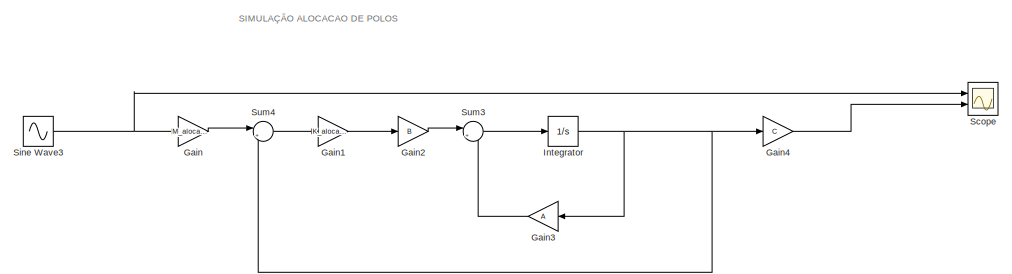
[diagram: root canvas - part 1/16, top center region]
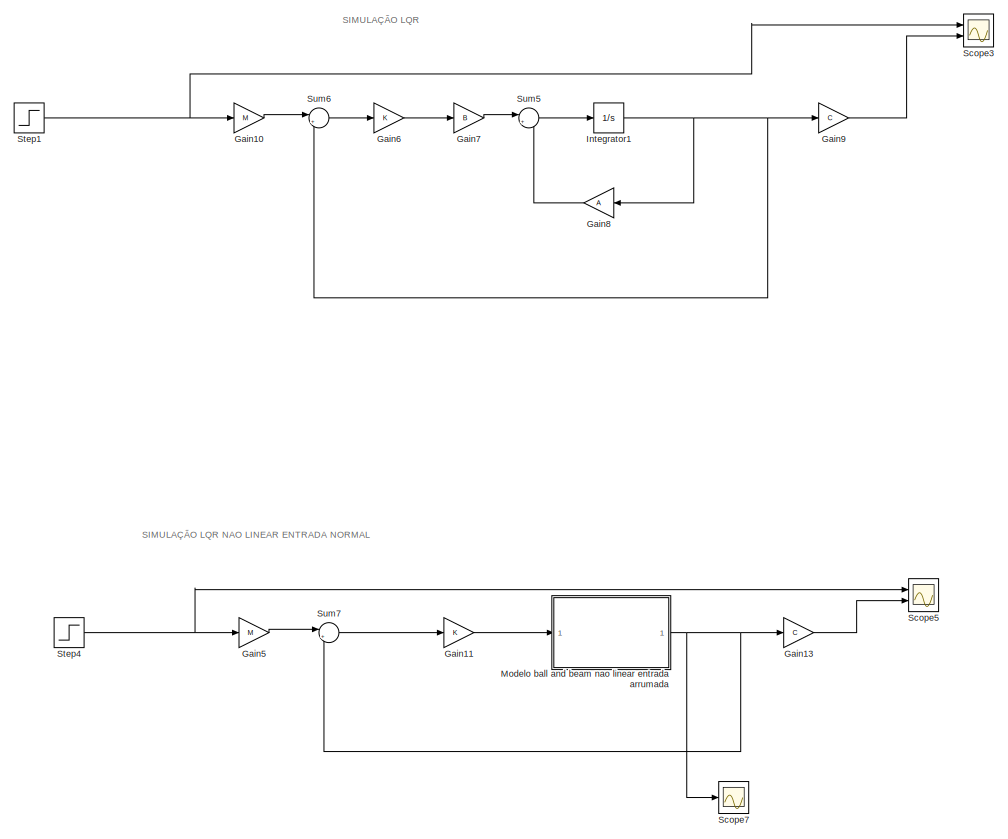
[diagram: root canvas - part 2/16, top center region]
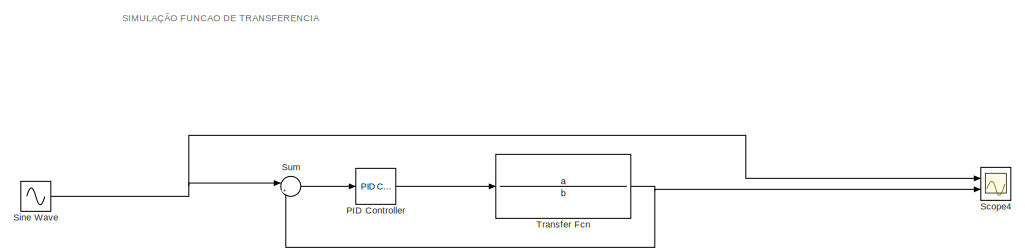
[diagram: root canvas - part 3/16, top right region]
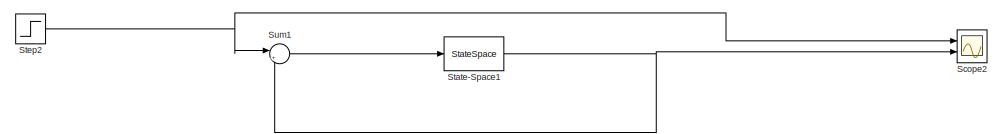
[diagram: root canvas - part 4/16, top right region]
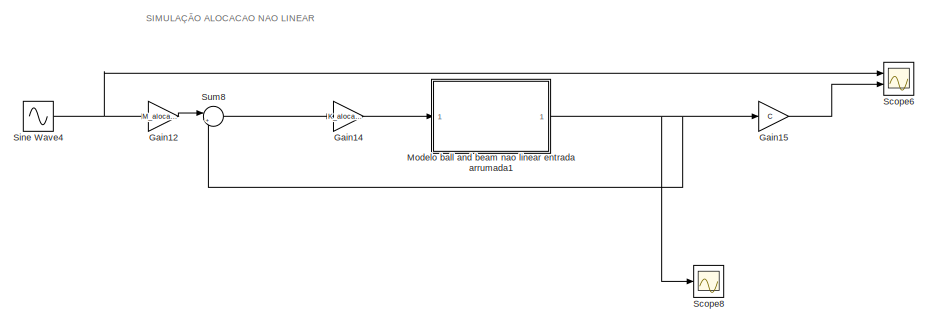
[diagram: root canvas - part 5/16, top center region]
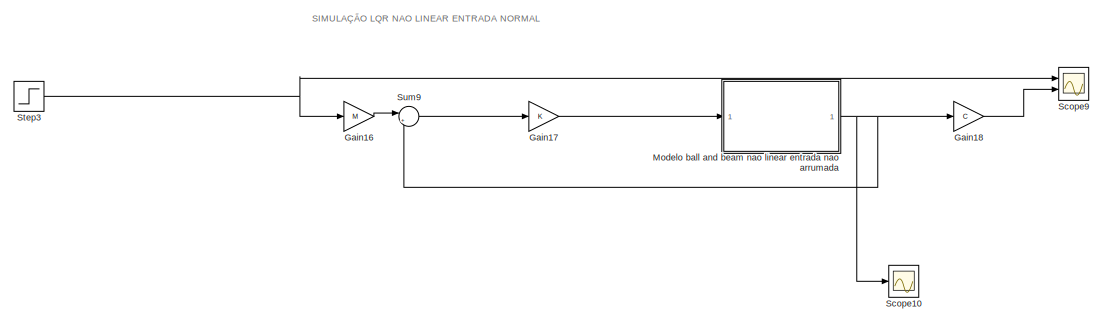
[diagram: root canvas - part 6/16, top right region]
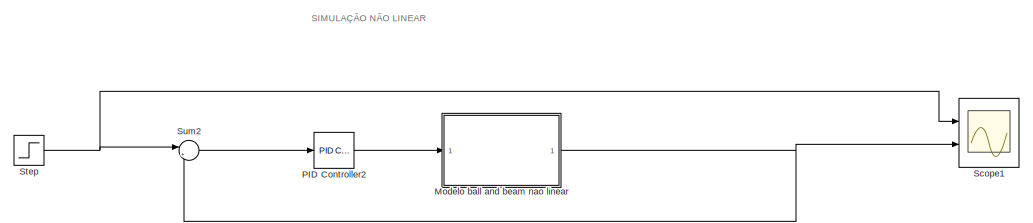
[diagram: root canvas - part 7/16, top right region]
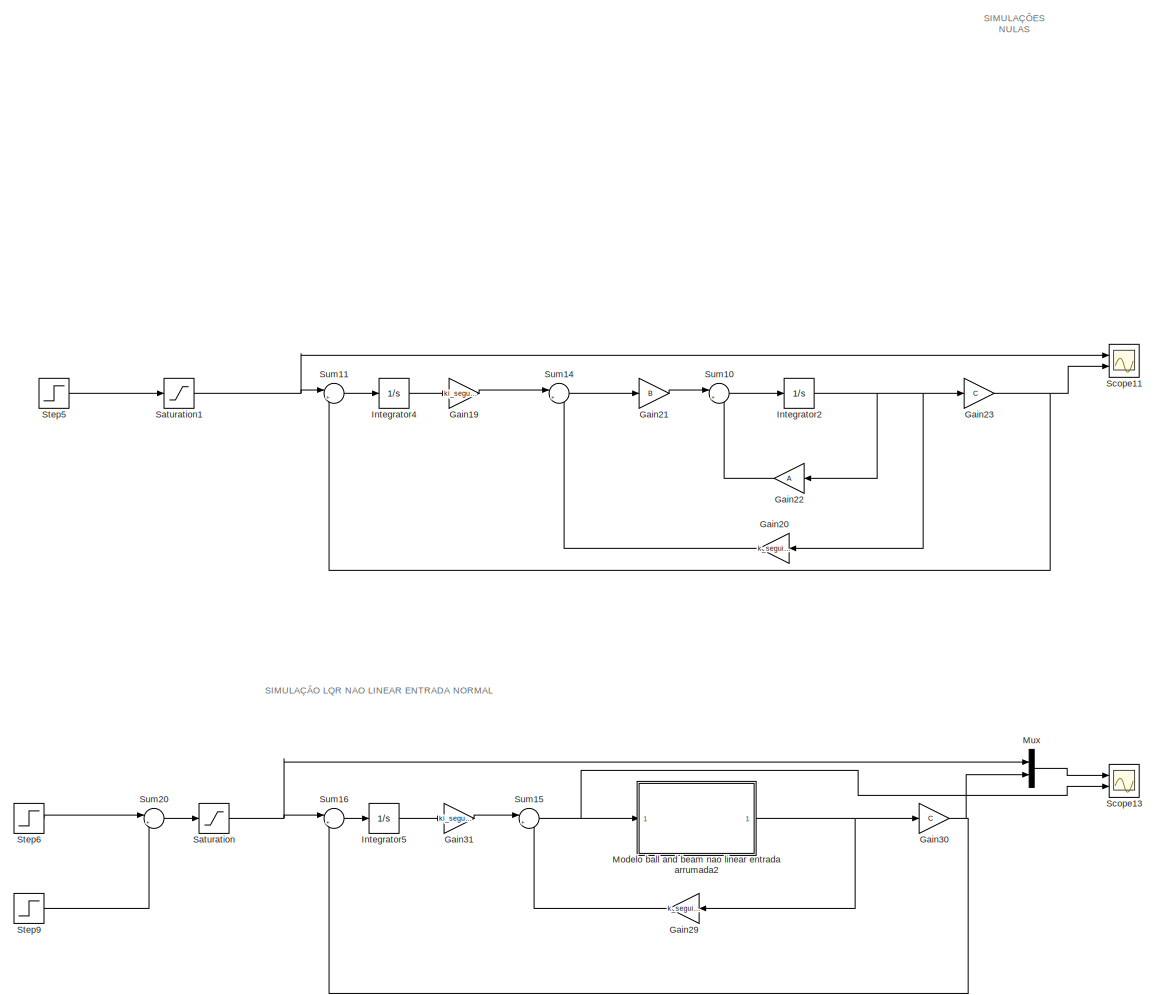
[diagram: root canvas - part 8/16, top center region]
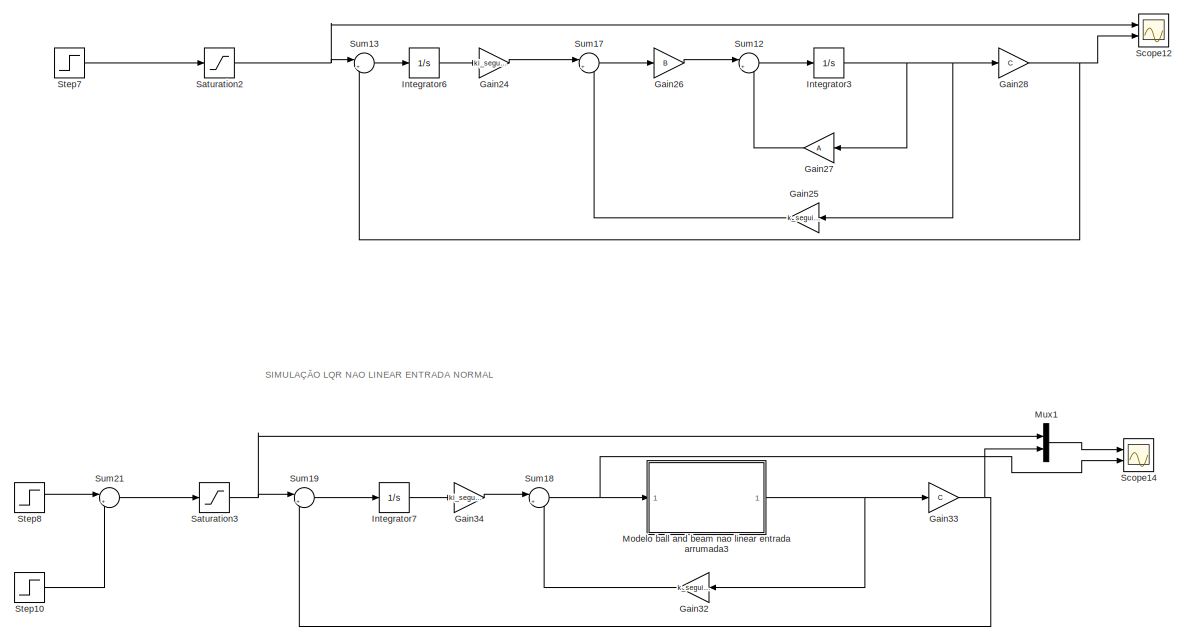
[diagram: root canvas - part 9/16, top center region]
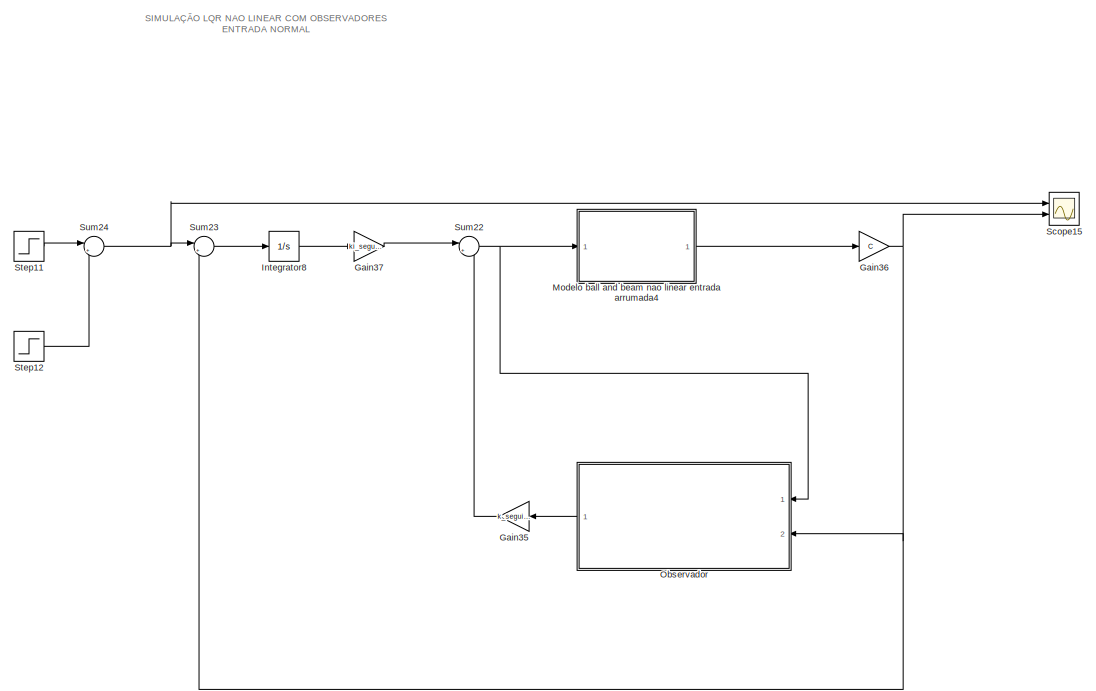
[diagram: root canvas - part 10/16, central region]
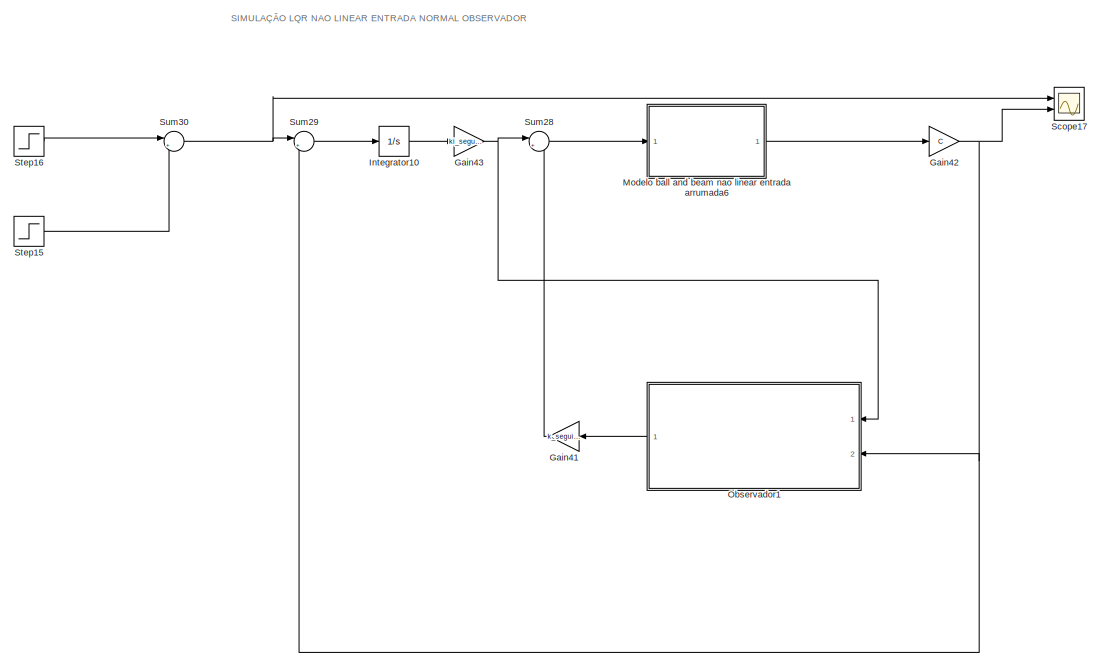
[diagram: root canvas - part 11/16, central region]
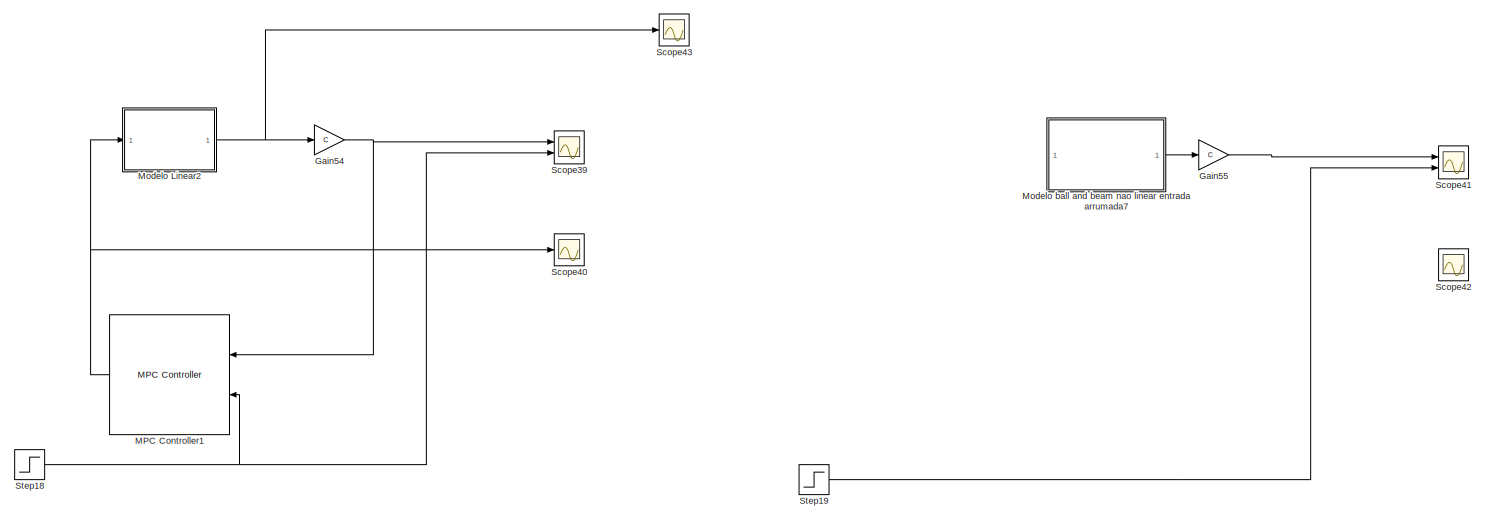
[diagram: root canvas - part 12/16, bottom center region]
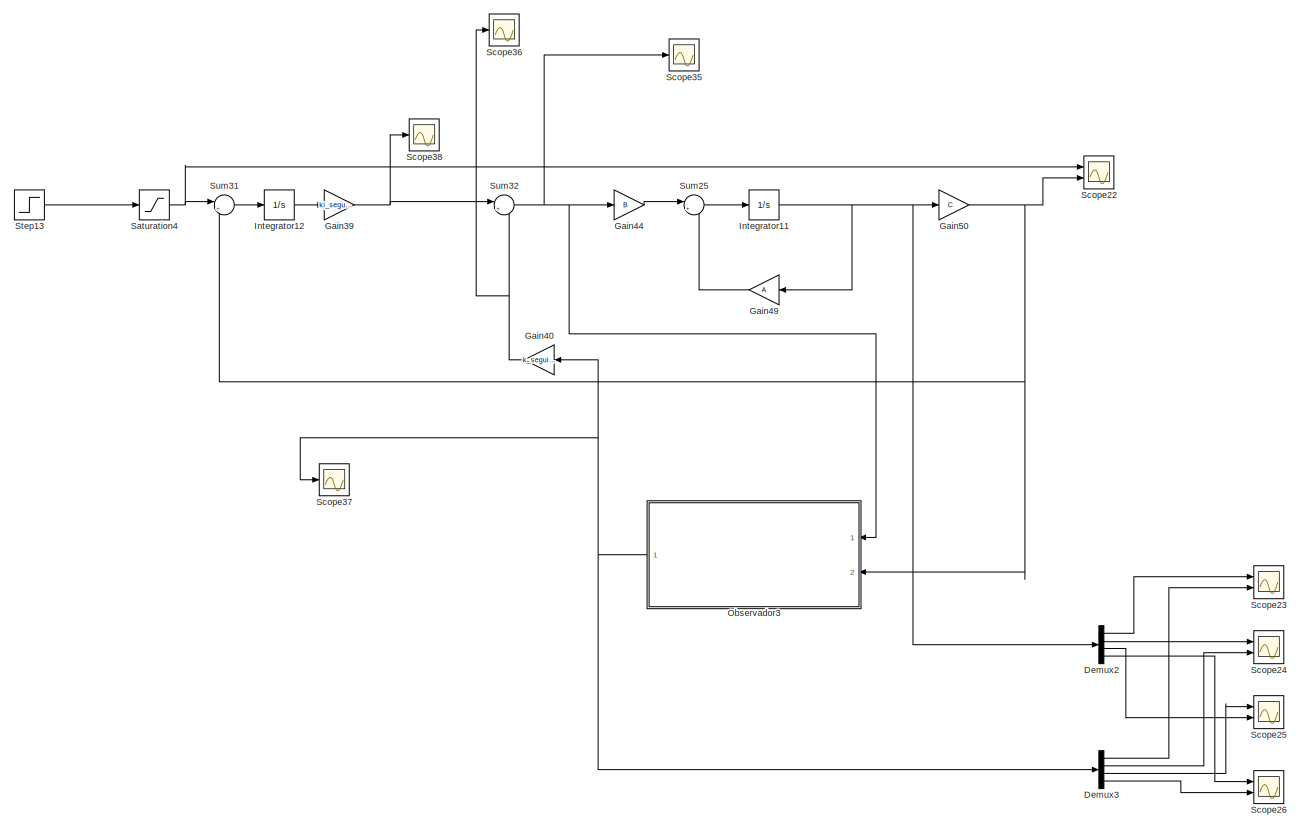
[diagram: root canvas - part 13/16, bottom left region]
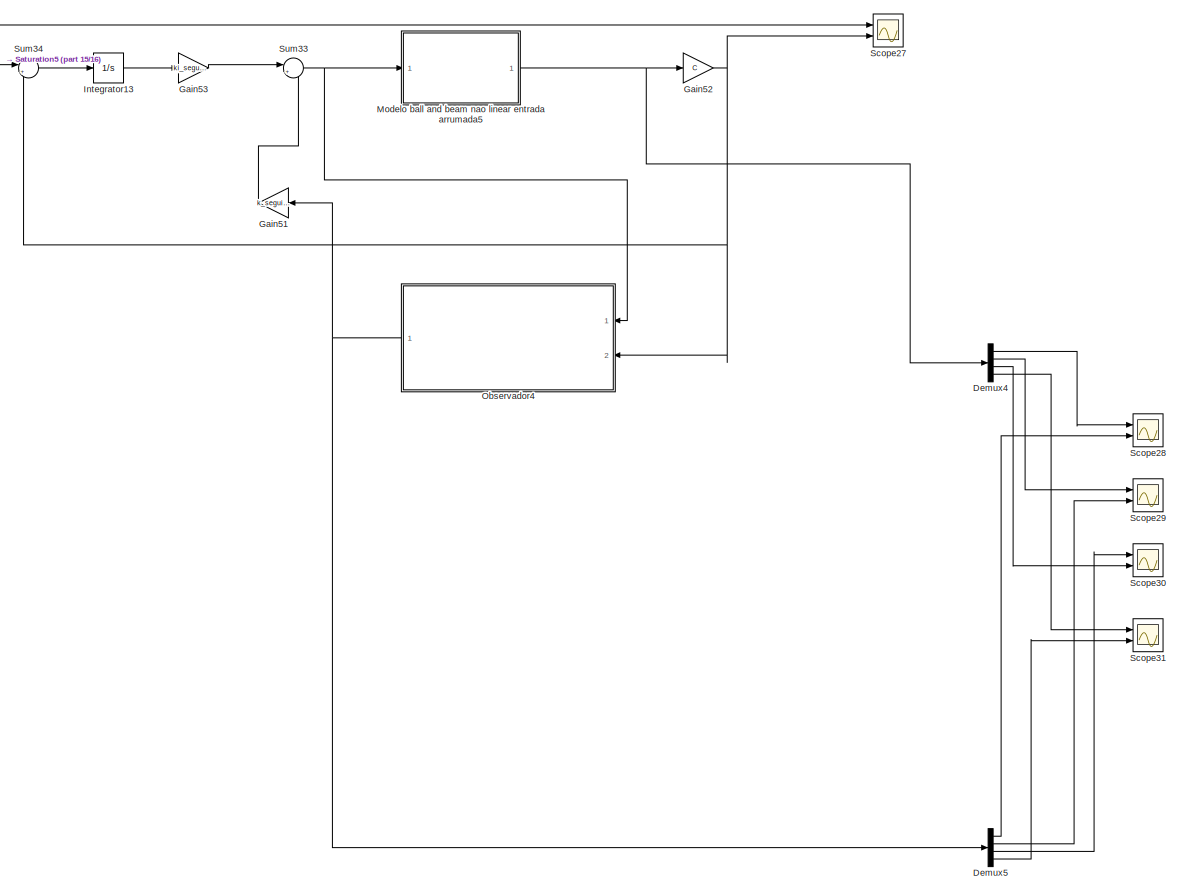
[diagram: root canvas - part 14/16, bottom left region]
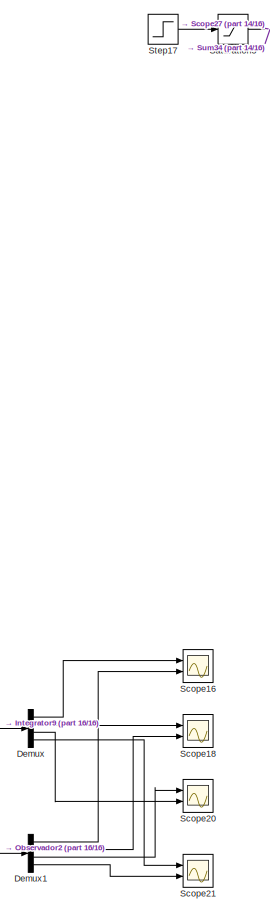
[diagram: root canvas - part 15/16, bottom left region]
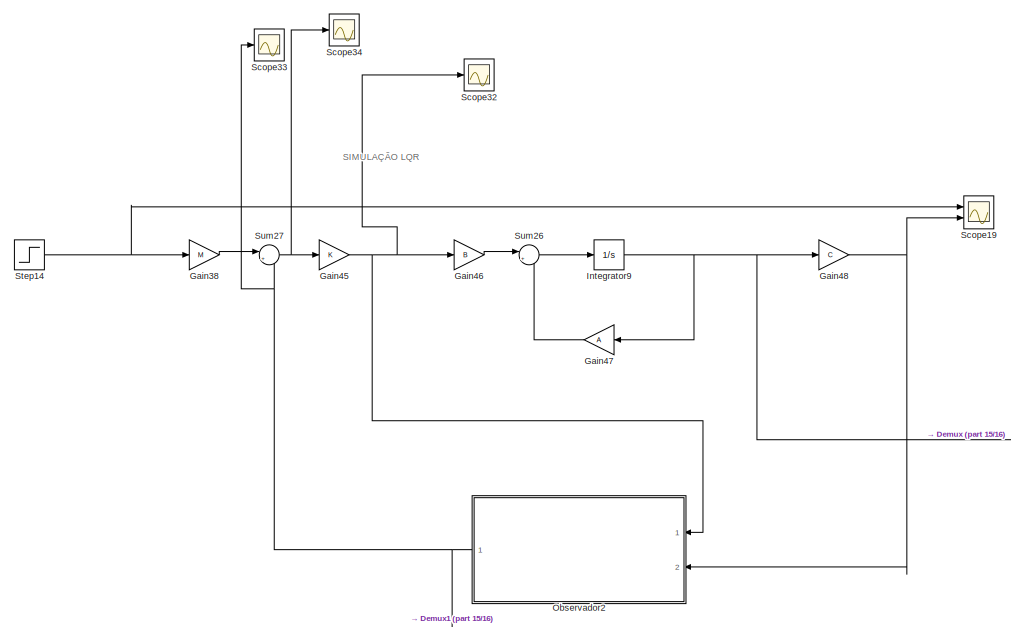
[diagram: root canvas - part 16/16, bottom left region]
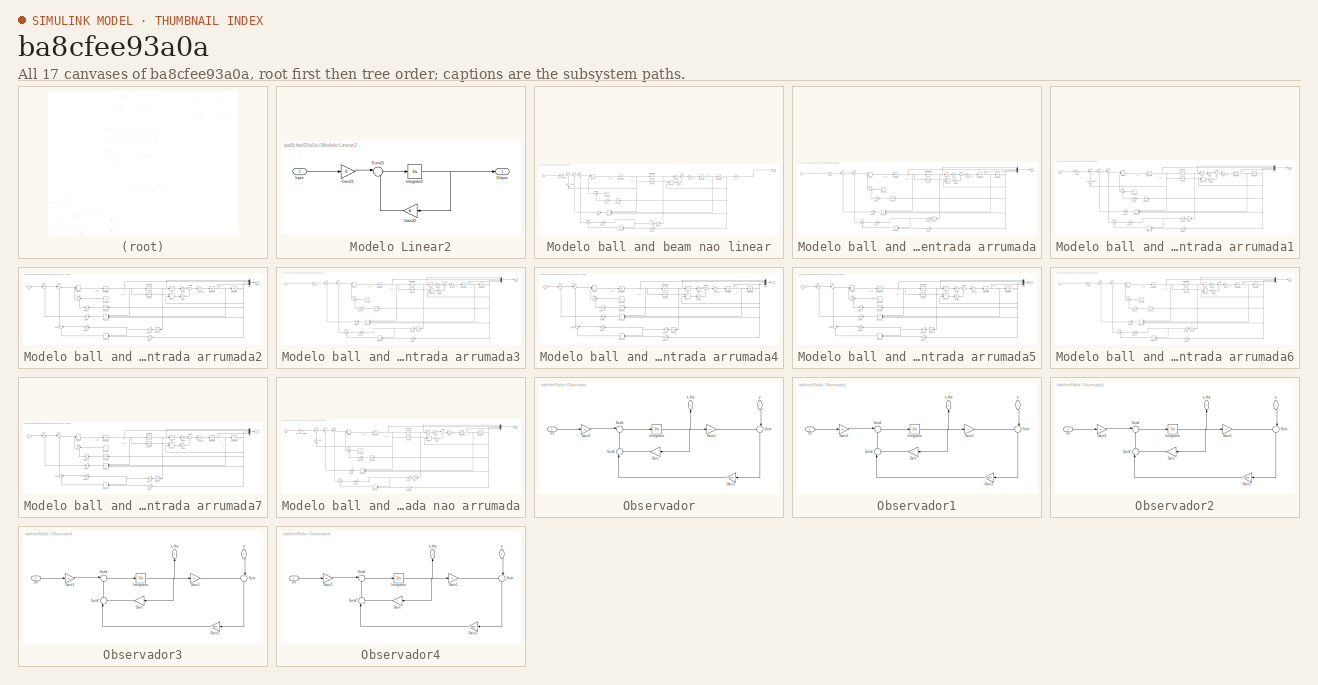
[diagram: thumbnail index - all 17 canvases of the model, root first then tree order]
MODEL slx_ba8cfee93a0a
KIND model
CONFIG AbsTol = auto
CONFIG EnableMultiTasking = off
CONFIG FixedStep = auto
CONFIG MaxStep = auto
CONFIG MinStep = auto
CONFIG RelTol = 1e-3
CONFIG SampleTimeConstraint = Unconstrained
CONFIG SolverName = VariableStepAuto
CONFIG StartTime = 0.0
CONFIG StopTime = 20
BLOCK [Demux] Demux
  Ports = [1, 4]
BLOCK [Demux] Demux1
  Ports = [1, 4]
BLOCK [Demux] Demux2
  Ports = [1, 4]
BLOCK [Demux] Demux3
  Ports = [1, 4]
BLOCK [Demux] Demux4
  Ports = [1, 4]
BLOCK [Demux] Demux5
  Ports = [1, 4]
BLOCK [Gain] Gain
  Gain = M_alocacao
BLOCK [Gain] Gain1
  Gain = K_alocacao
  Multiplication = Matrix(K*u)
BLOCK [Gain] Gain10
  Gain = M
BLOCK [Gain] Gain11
  Gain = K
  Multiplication = Matrix(K*u)
BLOCK [Gain] Gain12
  Gain = M_alocacao
BLOCK [Gain] Gain13
  Gain = C
  Multiplication = Matrix(K*u)
BLOCK [Gain] Gain14
  Gain = K_alocacao
  Multiplication = Matrix(K*u)
BLOCK [Gain] Gain15
  Gain = C
  Multiplication = Matrix(K*u)
BLOCK [Gain] Gain16
  Gain = M
BLOCK [Gain] Gain17
  Gain = K
  Multiplication = Matrix(K*u)
BLOCK [Gain] Gain18
  Gain = C
  Multiplication = Matrix(K*u)
BLOCK [Gain] Gain19
  Gain = ki_seguimento_lqr
BLOCK [Gain] Gain2
  Gain = B
BLOCK [Gain] Gain20
  Gain = k_seguimento_lqr
  Multiplication = Matrix(K*u)
  NameLocation = top
BLOCK [Gain] Gain21
  Gain = B
  Multiplication = Matrix(K*u)
BLOCK [Gain] Gain22
  Gain = A
  Multiplication = Matrix(K*u)
  NameLocation = top
BLOCK [Gain] Gain23
  Gain = C
  Multiplication = Matrix(K*u)
BLOCK [Gain] Gain24
  Gain = ki_seguimento_alocacao
BLOCK [Gain] Gain25
  Gain = k_seguimento_alocacao
  Multiplication = Matrix(K*u)
  NameLocation = top
BLOCK [Gain] Gain26
  Gain = B
  Multiplication = Matrix(K*u)
BLOCK [Gain] Gain27
  Gain = A
  Multiplication = Matrix(K*u)
  NameLocation = top
BLOCK [Gain] Gain28
  Gain = C
  Multiplication = Matrix(K*u)
BLOCK [Gain] Gain29
  Gain = k_seguimento_lqr
  Multiplication = Matrix(K*u)
  NameLocation = top
BLOCK [Gain] Gain3
  Gain = A
  Multiplication = Matrix(K*u)
  NameLocation = top
BLOCK [Gain] Gain30
  Gain = C
  Multiplication = Matrix(K*u)
BLOCK [Gain] Gain31
  Gain = ki_seguimento_lqr
BLOCK [Gain] Gain32
  Gain = k_seguimento_alocacao
  Multiplication = Matrix(K*u)
  NameLocation = top
BLOCK [Gain] Gain33
  Gain = C
  Multiplication = Matrix(K*u)
BLOCK [Gain] Gain34
  Gain = ki_seguimento_alocacao
BLOCK [Gain] Gain35
  Gain = k_seguimento_lqr
  Multiplication = Matrix(K*u)
  NameLocation = top
BLOCK [Gain] Gain36
  Gain = C
  Multiplication = Matrix(K*u)
BLOCK [Gain] Gain37
  Gain = ki_seguimento_lqr
BLOCK [Gain] Gain38
  Gain = M
BLOCK [Gain] Gain39
  Gain = ki_seguimento_lqr
BLOCK [Gain] Gain4
  Gain = C
  Multiplication = Matrix(K*u)
BLOCK [Gain] Gain40
  Gain = k_seguimento_lqr
  Multiplication = Matrix(K*u)
  NameLocation = top
BLOCK [Gain] Gain41
  Gain = k_seguimento_alocacao
  Multiplication = Matrix(K*u)
  NameLocation = top
BLOCK [Gain] Gain42
  Gain = C
  Multiplication = Matrix(K*u)
BLOCK [Gain] Gain43
  Gain = ki_seguimento_alocacao
BLOCK [Gain] Gain44
  Gain = B
  Multiplication = Matrix(K*u)
BLOCK [Gain] Gain45
  Gain = K
  Multiplication = Matrix(K*u)
BLOCK [Gain] Gain46
  Gain = B
BLOCK [Gain] Gain47
  Gain = A
  Multiplication = Matrix(K*u)
  NameLocation = top
BLOCK [Gain] Gain48
  Gain = C
  Multiplication = Matrix(K*u)
BLOCK [Gain] Gain49
  Gain = A
  Multiplication = Matrix(K*u)
  NameLocation = top
BLOCK [Gain] Gain5
  Gain = M
BLOCK [Gain] Gain50
  Gain = C
  Multiplication = Matrix(K*u)
BLOCK [Gain] Gain51
  Gain = k_seguimento_lqr
  Multiplication = Matrix(K*u)
  NameLocation = top
BLOCK [Gain] Gain52
  Gain = C
  Multiplication = Matrix(K*u)
BLOCK [Gain] Gain53
  Gain = ki_seguimento_lqr
BLOCK [Gain] Gain54
  Gain = C
  Multiplication = Matrix(K*u)
BLOCK [Gain] Gain55
  Gain = C
  Multiplication = Matrix(K*u)
BLOCK [Gain] Gain6
  Gain = K
  Multiplication = Matrix(K*u)
BLOCK [Gain] Gain7
  Gain = B
BLOCK [Gain] Gain8
  Gain = A
  Multiplication = Matrix(K*u)
  NameLocation = top
BLOCK [Gain] Gain9
  Gain = C
  Multiplication = Matrix(K*u)
BLOCK [Integrator] Integrator
  Ports = [1, 1]
BLOCK [Integrator] Integrator1
  Ports = [1, 1]
BLOCK [Integrator] Integrator10
  Ports = [1, 1]
BLOCK [Integrator] Integrator11
  Ports = [1, 1]
BLOCK [Integrator] Integrator12
  Ports = [1, 1]
BLOCK [Integrator] Integrator13
  Ports = [1, 1]
BLOCK [Integrator] Integrator2
  Ports = [1, 1]
BLOCK [Integrator] Integrator3
  Ports = [1, 1]
BLOCK [Integrator] Integrator4
  Ports = [1, 1]
BLOCK [Integrator] Integrator5
  Ports = [1, 1]
BLOCK [Integrator] Integrator6
  Ports = [1, 1]
BLOCK [Integrator] Integrator7
  Ports = [1, 1]
BLOCK [Integrator] Integrator8
  Ports = [1, 1]
BLOCK [Integrator] Integrator9
  Ports = [1, 1]
BLOCK [Reference] MPC Controller1  REF=mpclib/MPC Controller  (lib defined in mdl_ae329e0e0455)
  NameLocation = top
  Ports = [2, 1]
  SCDEnableBlockLinearizationSpecification = on
  SourceBlock = mpclib/MPC Controller
  SourceProductBaseCode = MP
  SourceType = MPC
BLOCK [SubSystem] Modelo Linear2
  Ports = [1, 1]
  RequestExecContextInheritance = off
BLOCK [Gain] Modelo Linear2/Gain21
  Gain = B
  Multiplication = Matrix(K*u)
BLOCK [Gain] Modelo Linear2/Gain22
  Gain = A
  Multiplication = Matrix(K*u)
  NameLocation = top
BLOCK [Inport] Modelo Linear2/Input
BLOCK [Integrator] Modelo Linear2/Integrator2
  Ports = [1, 1]
BLOCK [Outport] Modelo Linear2/Output
BLOCK [Sum] Modelo Linear2/Sum10
  Inputs = |++
  Ports = [2, 1]
BLOCK [SubSystem] Modelo ball and beam nao linear
  Ports = [1, 1]
  RequestExecContextInheritance = off
BLOCK [SubSystem] Modelo ball and beam nao linear entrada arrumada
  Ports = [1, 1]
  RequestExecContextInheritance = off
BLOCK [Constant] Modelo ball and beam nao linear entrada arrumada/Constant
  NameLocation = top
  Value = Jv
BLOCK [Trigonometry] Modelo ball and beam nao linear entrada arrumada/Cos1
  NameLocation = top
  Operator = cos
  Ports = [1, 1]
BLOCK [Product] Modelo ball and beam nao linear entrada arrumada/Divide
  Inputs = */
  Ports = [2, 1]
BLOCK [Gain] Modelo ball and beam nao linear entrada arrumada/Gain10
  Gain = g
  NameLocation = top
BLOCK [Gain] Modelo ball and beam nao linear entrada arrumada/Gain11
  Gain = (L/2)*mv
  NameLocation = top
BLOCK [Gain] Modelo ball and beam nao linear entrada arrumada/Gain12
  Gain = mb
  NameLocation = top
BLOCK [Gain] Modelo ball and beam nao linear entrada arrumada/Gain4
  Gain = 5
BLOCK [Gain] Modelo ball and beam nao linear entrada arrumada/Gain5
  Gain = 5*g
BLOCK [Gain] Modelo ball and beam nao linear entrada arrumada/Gain6
  Gain = 1/7
BLOCK [Gain] Modelo ball and beam nao linear entrada arrumada/Gain8
  Gain = 2*mb
  NameLocation = top
BLOCK [Gain] Modelo ball and beam nao linear entrada arrumada/Gain9
  Gain = mb
  NameLocation = top
BLOCK [Inport] Modelo ball and beam nao linear entrada arrumada/In1
BLOCK [Integrator] Modelo ball and beam nao linear entrada arrumada/Integrator4
  Ports = [1, 1]
BLOCK [Integrator] Modelo ball and beam nao linear entrada arrumada/Integrator5
  Ports = [1, 1]
BLOCK [Integrator] Modelo ball and beam nao linear entrada arrumada/Integrator6
  Ports = [1, 1]
BLOCK [Integrator] Modelo ball and beam nao linear entrada arrumada/Integrator8
  Ports = [1, 1]
BLOCK [Mux] Modelo ball and beam nao linear entrada arrumada/Mux
  DisplayOption = bar
  Ports = [4, 1]
BLOCK [Outport] Modelo ball and beam nao linear entrada arrumada/Out1
BLOCK [Product] Modelo ball and beam nao linear entrada arrumada/Product
  Ports = [2, 1]
BLOCK [Product] Modelo ball and beam nao linear entrada arrumada/Product1
  NameLocation = top
  Ports = [2, 1]
BLOCK [Product] Modelo ball and beam nao linear entrada arrumada/Product2
  Inputs = 3
  NameLocation = top
  Ports = [3, 1]
BLOCK [Trigonometry] Modelo ball and beam nao linear entrada arrumada/Sin
  Ports = [1, 1]
BLOCK [Math] Modelo ball and beam nao linear entrada arrumada/Square
  Operator = square
  Ports = [1, 1]
BLOCK [Math] Modelo ball and beam nao linear entrada arrumada/Square1
  NameLocation = top
  Operator = square
  Ports = [1, 1]
BLOCK [Sum] Modelo ball and beam nao linear entrada arrumada/Sum
  Inputs = |+-
  Ports = [2, 1]
BLOCK [Sum] Modelo ball and beam nao linear entrada arrumada/Sum1
  Inputs = |+-
  Ports = [2, 1]
BLOCK [Sum] Modelo ball and beam nao linear entrada arrumada/Sum2
  Inputs = |-+
  NameLocation = top
  Ports = [2, 1]
BLOCK [Sum] Modelo ball and beam nao linear entrada arrumada/Sum3
  Inputs = |++
  Ports = [2, 1]
BLOCK [Sum] Modelo ball and beam nao linear entrada arrumada/Sum6
  Inputs = |++
  NameLocation = top
  Ports = [2, 1]
BLOCK [Sum] Modelo ball and beam nao linear entrada arrumada/Sum8
  Inputs = |++
  NameLocation = top
  Ports = [2, 1]
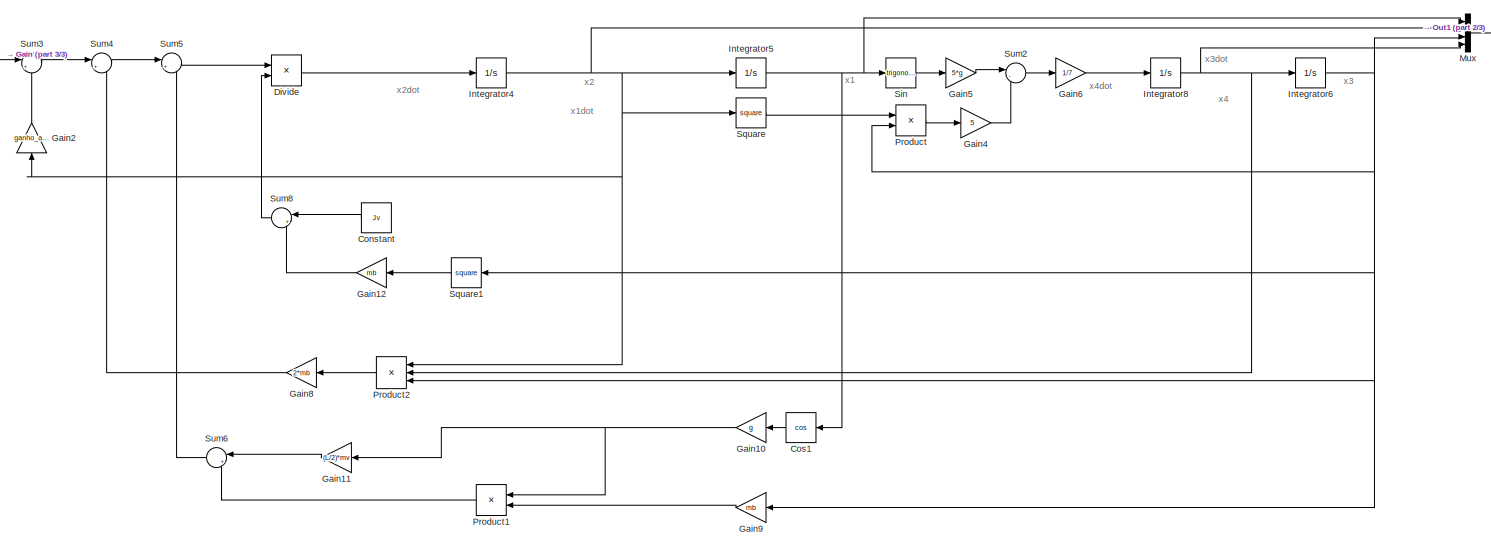
[diagram: Modelo ball and beam nao linear entrada arrumada1 - part 1/3, most of the canvas]
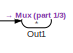
[diagram: Modelo ball and beam nao linear entrada arrumada1 - part 2/3, top right region]
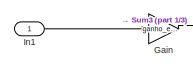
[diagram: Modelo ball and beam nao linear entrada arrumada1 - part 3/3, top left region]
BLOCK [SubSystem] Modelo ball and beam nao linear entrada arrumada1
  Ports = [1, 1]
  RequestExecContextInheritance = off
BLOCK [Constant] Modelo ball and beam nao linear entrada arrumada1/Constant
  NameLocation = top
  Value = Jv
BLOCK [Trigonometry] Modelo ball and beam nao linear entrada arrumada1/Cos1
  NameLocation = top
  Operator = cos
  Ports = [1, 1]
BLOCK [Product] Modelo ball and beam nao linear entrada arrumada1/Divide
  Inputs = */
  Ports = [2, 1]
BLOCK [Gain] Modelo ball and beam nao linear entrada arrumada1/Gain
  Gain = ganho_entrada
BLOCK [Gain] Modelo ball and beam nao linear entrada arrumada1/Gain10
  Gain = g
  NameLocation = top
BLOCK [Gain] Modelo ball and beam nao linear entrada arrumada1/Gain11
  Gain = (L/2)*mv
  NameLocation = top
BLOCK [Gain] Modelo ball and beam nao linear entrada arrumada1/Gain12
  Gain = mb
  NameLocation = top
BLOCK [Gain] Modelo ball and beam nao linear entrada arrumada1/Gain2
  Gain = ganho_angulo
  NameLocation = right
BLOCK [Gain] Modelo ball and beam nao linear entrada arrumada1/Gain4
  Gain = 5
BLOCK [Gain] Modelo ball and beam nao linear entrada arrumada1/Gain5
  Gain = 5*g
BLOCK [Gain] Modelo ball and beam nao linear entrada arrumada1/Gain6
  Gain = 1/7
BLOCK [Gain] Modelo ball and beam nao linear entrada arrumada1/Gain8
  Gain = 2*mb
  NameLocation = top
BLOCK [Gain] Modelo ball and beam nao linear entrada arrumada1/Gain9
  Gain = mb
  NameLocation = top
BLOCK [Inport] Modelo ball and beam nao linear entrada arrumada1/In1
BLOCK [Integrator] Modelo ball and beam nao linear entrada arrumada1/Integrator4
  Ports = [1, 1]
BLOCK [Integrator] Modelo ball and beam nao linear entrada arrumada1/Integrator5
  Ports = [1, 1]
BLOCK [Integrator] Modelo ball and beam nao linear entrada arrumada1/Integrator6
  Ports = [1, 1]
BLOCK [Integrator] Modelo ball and beam nao linear entrada arrumada1/Integrator8
  Ports = [1, 1]
BLOCK [Mux] Modelo ball and beam nao linear entrada arrumada1/Mux
  DisplayOption = bar
  Ports = [4, 1]
BLOCK [Outport] Modelo ball and beam nao linear entrada arrumada1/Out1
BLOCK [Product] Modelo ball and beam nao linear entrada arrumada1/Product
  Ports = [2, 1]
BLOCK [Product] Modelo ball and beam nao linear entrada arrumada1/Product1
  NameLocation = top
  Ports = [2, 1]
BLOCK [Product] Modelo ball and beam nao linear entrada arrumada1/Product2
  Inputs = 3
  NameLocation = top
  Ports = [3, 1]
BLOCK [Trigonometry] Modelo ball and beam nao linear entrada arrumada1/Sin
  Ports = [1, 1]
BLOCK [Math] Modelo ball and beam nao linear entrada arrumada1/Square
  Operator = square
  Ports = [1, 1]
BLOCK [Math] Modelo ball and beam nao linear entrada arrumada1/Square1
  NameLocation = top
  Operator = square
  Ports = [1, 1]
BLOCK [Sum] Modelo ball and beam nao linear entrada arrumada1/Sum2
  Inputs = |-+
  NameLocation = top
  Ports = [2, 1]
BLOCK [Sum] Modelo ball and beam nao linear entrada arrumada1/Sum3
  Inputs = |+-
  Ports = [2, 1]
BLOCK [Sum] Modelo ball and beam nao linear entrada arrumada1/Sum4
  Inputs = |+-
  Ports = [2, 1]
BLOCK [Sum] Modelo ball and beam nao linear entrada arrumada1/Sum5
  Inputs = |+-
  Ports = [2, 1]
BLOCK [Sum] Modelo ball and beam nao linear entrada arrumada1/Sum6
  Inputs = |++
  NameLocation = top
  Ports = [2, 1]
BLOCK [Sum] Modelo ball and beam nao linear entrada arrumada1/Sum8
  Inputs = |++
  NameLocation = top
  Ports = [2, 1]
BLOCK [SubSystem] Modelo ball and beam nao linear entrada arrumada2
  Ports = [1, 1]
  RequestExecContextInheritance = off
BLOCK [Constant] Modelo ball and beam nao linear entrada arrumada2/Constant
  NameLocation = top
  Value = Jv
BLOCK [Trigonometry] Modelo ball and beam nao linear entrada arrumada2/Cos1
  NameLocation = top
  Operator = cos
  Ports = [1, 1]
BLOCK [Product] Modelo ball and beam nao linear entrada arrumada2/Divide
  Inputs = */
  Ports = [2, 1]
BLOCK [Gain] Modelo ball and beam nao linear entrada arrumada2/Gain10
  Gain = g
  NameLocation = top
BLOCK [Gain] Modelo ball and beam nao linear entrada arrumada2/Gain11
  Gain = (L/2)*mv
  NameLocation = top
BLOCK [Gain] Modelo ball and beam nao linear entrada arrumada2/Gain12
  Gain = mb
  NameLocation = top
BLOCK [Gain] Modelo ball and beam nao linear entrada arrumada2/Gain4
  Gain = 5
BLOCK [Gain] Modelo ball and beam nao linear entrada arrumada2/Gain5
  Gain = 5*g
BLOCK [Gain] Modelo ball and beam nao linear entrada arrumada2/Gain6
  Gain = 1/7
BLOCK [Gain] Modelo ball and beam nao linear entrada arrumada2/Gain8
  Gain = 2*mb
  NameLocation = top
BLOCK [Gain] Modelo ball and beam nao linear entrada arrumada2/Gain9
  Gain = mb
  NameLocation = top
BLOCK [Inport] Modelo ball and beam nao linear entrada arrumada2/In1
BLOCK [Integrator] Modelo ball and beam nao linear entrada arrumada2/Integrator4
  Ports = [1, 1]
BLOCK [Integrator] Modelo ball and beam nao linear entrada arrumada2/Integrator5
  Ports = [1, 1]
BLOCK [Integrator] Modelo ball and beam nao linear entrada arrumada2/Integrator6
  Ports = [1, 1]
BLOCK [Integrator] Modelo ball and beam nao linear entrada arrumada2/Integrator8
  Ports = [1, 1]
BLOCK [Mux] Modelo ball and beam nao linear entrada arrumada2/Mux
  DisplayOption = bar
  Ports = [4, 1]
BLOCK [Outport] Modelo ball and beam nao linear entrada arrumada2/Out1
BLOCK [Product] Modelo ball and beam nao linear entrada arrumada2/Product
  Ports = [2, 1]
BLOCK [Product] Modelo ball and beam nao linear entrada arrumada2/Product1
  NameLocation = top
  Ports = [2, 1]
BLOCK [Product] Modelo ball and beam nao linear entrada arrumada2/Product2
  Inputs = 3
  NameLocation = top
  Ports = [3, 1]
BLOCK [Trigonometry] Modelo ball and beam nao linear entrada arrumada2/Sin
  Ports = [1, 1]
BLOCK [Math] Modelo ball and beam nao linear entrada arrumada2/Square
  Operator = square
  Ports = [1, 1]
BLOCK [Math] Modelo ball and beam nao linear entrada arrumada2/Square1
  NameLocation = top
  Operator = square
  Ports = [1, 1]
BLOCK [Sum] Modelo ball and beam nao linear entrada arrumada2/Sum
  Inputs = |+-
  Ports = [2, 1]
BLOCK [Sum] Modelo ball and beam nao linear entrada arrumada2/Sum1
  Inputs = |+-
  Ports = [2, 1]
BLOCK [Sum] Modelo ball and beam nao linear entrada arrumada2/Sum2
  Inputs = |-+
  NameLocation = top
  Ports = [2, 1]
BLOCK [Sum] Modelo ball and beam nao linear entrada arrumada2/Sum6
  Inputs = |++
  NameLocation = top
  Ports = [2, 1]
BLOCK [Sum] Modelo ball and beam nao linear entrada arrumada2/Sum8
  Inputs = |++
  NameLocation = top
  Ports = [2, 1]
BLOCK [SubSystem] Modelo ball and beam nao linear entrada arrumada3
  Ports = [1, 1]
  RequestExecContextInheritance = off
BLOCK [Constant] Modelo ball and beam nao linear entrada arrumada3/Constant
  NameLocation = top
  Value = Jv
BLOCK [Trigonometry] Modelo ball and beam nao linear entrada arrumada3/Cos1
  NameLocation = top
  Operator = cos
  Ports = [1, 1]
BLOCK [Product] Modelo ball and beam nao linear entrada arrumada3/Divide
  Inputs = */
  Ports = [2, 1]
BLOCK [Gain] Modelo ball and beam nao linear entrada arrumada3/Gain10
  Gain = g
  NameLocation = top
BLOCK [Gain] Modelo ball and beam nao linear entrada arrumada3/Gain11
  Gain = (L/2)*mv
  NameLocation = top
BLOCK [Gain] Modelo ball and beam nao linear entrada arrumada3/Gain12
  Gain = mb
  NameLocation = top
BLOCK [Gain] Modelo ball and beam nao linear entrada arrumada3/Gain4
  Gain = 5
BLOCK [Gain] Modelo ball and beam nao linear entrada arrumada3/Gain5
  Gain = 5*g
BLOCK [Gain] Modelo ball and beam nao linear entrada arrumada3/Gain6
  Gain = 1/7
BLOCK [Gain] Modelo ball and beam nao linear entrada arrumada3/Gain8
  Gain = 2*mb
  NameLocation = top
BLOCK [Gain] Modelo ball and beam nao linear entrada arrumada3/Gain9
  Gain = mb
  NameLocation = top
BLOCK [Inport] Modelo ball and beam nao linear entrada arrumada3/In1
BLOCK [Integrator] Modelo ball and beam nao linear entrada arrumada3/Integrator4
  Ports = [1, 1]
BLOCK [Integrator] Modelo ball and beam nao linear entrada arrumada3/Integrator5
  Ports = [1, 1]
BLOCK [Integrator] Modelo ball and beam nao linear entrada arrumada3/Integrator6
  Ports = [1, 1]
BLOCK [Integrator] Modelo ball and beam nao linear entrada arrumada3/Integrator8
  Ports = [1, 1]
BLOCK [Mux] Modelo ball and beam nao linear entrada arrumada3/Mux
  DisplayOption = bar
  Ports = [4, 1]
BLOCK [Outport] Modelo ball and beam nao linear entrada arrumada3/Out1
BLOCK [Product] Modelo ball and beam nao linear entrada arrumada3/Product
  Ports = [2, 1]
BLOCK [Product] Modelo ball and beam nao linear entrada arrumada3/Product1
  NameLocation = top
  Ports = [2, 1]
BLOCK [Product] Modelo ball and beam nao linear entrada arrumada3/Product2
  Inputs = 3
  NameLocation = top
  Ports = [3, 1]
BLOCK [Trigonometry] Modelo ball and beam nao linear entrada arrumada3/Sin
  Ports = [1, 1]
BLOCK [Math] Modelo ball and beam nao linear entrada arrumada3/Square
  Operator = square
  Ports = [1, 1]
BLOCK [Math] Modelo ball and beam nao linear entrada arrumada3/Square1
  NameLocation = top
  Operator = square
  Ports = [1, 1]
BLOCK [Sum] Modelo ball and beam nao linear entrada arrumada3/Sum
  Inputs = |+-
  Ports = [2, 1]
BLOCK [Sum] Modelo ball and beam nao linear entrada arrumada3/Sum1
  Inputs = |+-
  Ports = [2, 1]
BLOCK [Sum] Modelo ball and beam nao linear entrada arrumada3/Sum2
  Inputs = |-+
  NameLocation = top
  Ports = [2, 1]
BLOCK [Sum] Modelo ball and beam nao linear entrada arrumada3/Sum3
  Inputs = |++
  Ports = [2, 1]
BLOCK [Sum] Modelo ball and beam nao linear entrada arrumada3/Sum6
  Inputs = |++
  NameLocation = top
  Ports = [2, 1]
BLOCK [Sum] Modelo ball and beam nao linear entrada arrumada3/Sum8
  Inputs = |++
  NameLocation = top
  Ports = [2, 1]
BLOCK [SubSystem] Modelo ball and beam nao linear entrada arrumada4
  Ports = [1, 1]
  RequestExecContextInheritance = off
BLOCK [Constant] Modelo ball and beam nao linear entrada arrumada4/Constant
  NameLocation = top
  Value = Jv
BLOCK [Trigonometry] Modelo ball and beam nao linear entrada arrumada4/Cos1
  NameLocation = top
  Operator = cos
  Ports = [1, 1]
BLOCK [Product] Modelo ball and beam nao linear entrada arrumada4/Divide
  Inputs = */
  Ports = [2, 1]
BLOCK [Gain] Modelo ball and beam nao linear entrada arrumada4/Gain10
  Gain = g
  NameLocation = top
BLOCK [Gain] Modelo ball and beam nao linear entrada arrumada4/Gain11
  Gain = (L/2)*mv
  NameLocation = top
BLOCK [Gain] Modelo ball and beam nao linear entrada arrumada4/Gain12
  Gain = mb
  NameLocation = top
BLOCK [Gain] Modelo ball and beam nao linear entrada arrumada4/Gain4
  Gain = 5
BLOCK [Gain] Modelo ball and beam nao linear entrada arrumada4/Gain5
  Gain = 5*g
BLOCK [Gain] Modelo ball and beam nao linear entrada arrumada4/Gain6
  Gain = 1/7
BLOCK [Gain] Modelo ball and beam nao linear entrada arrumada4/Gain8
  Gain = 2*mb
  NameLocation = top
BLOCK [Gain] Modelo ball and beam nao linear entrada arrumada4/Gain9
  Gain = mb
  NameLocation = top
BLOCK [Inport] Modelo ball and beam nao linear entrada arrumada4/In1
BLOCK [Integrator] Modelo ball and beam nao linear entrada arrumada4/Integrator4
  Ports = [1, 1]
BLOCK [Integrator] Modelo ball and beam nao linear entrada arrumada4/Integrator5
  Ports = [1, 1]
BLOCK [Integrator] Modelo ball and beam nao linear entrada arrumada4/Integrator6
  Ports = [1, 1]
BLOCK [Integrator] Modelo ball and beam nao linear entrada arrumada4/Integrator8
  Ports = [1, 1]
BLOCK [Mux] Modelo ball and beam nao linear entrada arrumada4/Mux
  DisplayOption = bar
  Ports = [4, 1]
BLOCK [Product] Modelo ball and beam nao linear entrada arrumada4/Product
  Ports = [2, 1]
BLOCK [Product] Modelo ball and beam nao linear entrada arrumada4/Product1
  NameLocation = top
  Ports = [2, 1]
BLOCK [Product] Modelo ball and beam nao linear entrada arrumada4/Product2
  Inputs = 3
  NameLocation = top
  Ports = [3, 1]
BLOCK [Trigonometry] Modelo ball and beam nao linear entrada arrumada4/Sin
  Ports = [1, 1]
BLOCK [Math] Modelo ball and beam nao linear entrada arrumada4/Square
  Operator = square
  Ports = [1, 1]
BLOCK [Math] Modelo ball and beam nao linear entrada arrumada4/Square1
  NameLocation = top
  Operator = square
  Ports = [1, 1]
BLOCK [Sum] Modelo ball and beam nao linear entrada arrumada4/Sum
  Inputs = |+-
  Ports = [2, 1]
BLOCK [Sum] Modelo ball and beam nao linear entrada arrumada4/Sum1
  Inputs = |+-
  Ports = [2, 1]
BLOCK [Sum] Modelo ball and beam nao linear entrada arrumada4/Sum2
  Inputs = |-+
  NameLocation = top
  Ports = [2, 1]
BLOCK [Sum] Modelo ball and beam nao linear entrada arrumada4/Sum6
  Inputs = |++
  NameLocation = top
  Ports = [2, 1]
BLOCK [Sum] Modelo ball and beam nao linear entrada arrumada4/Sum8
  Inputs = |++
  NameLocation = top
  Ports = [2, 1]
BLOCK [Outport] Modelo ball and beam nao linear entrada arrumada4/y
BLOCK [SubSystem] Modelo ball and beam nao linear entrada arrumada5
  Ports = [1, 1]
  RequestExecContextInheritance = off
BLOCK [Constant] Modelo ball and beam nao linear entrada arrumada5/Constant
  NameLocation = top
  Value = Jv
BLOCK [Trigonometry] Modelo ball and beam nao linear entrada arrumada5/Cos1
  NameLocation = top
  Operator = cos
  Ports = [1, 1]
BLOCK [Product] Modelo ball and beam nao linear entrada arrumada5/Divide
  Inputs = */
  Ports = [2, 1]
BLOCK [Gain] Modelo ball and beam nao linear entrada arrumada5/Gain10
  Gain = g
  NameLocation = top
BLOCK [Gain] Modelo ball and beam nao linear entrada arrumada5/Gain11
  Gain = (L/2)*mv
  NameLocation = top
BLOCK [Gain] Modelo ball and beam nao linear entrada arrumada5/Gain12
  Gain = mb
  NameLocation = top
BLOCK [Gain] Modelo ball and beam nao linear entrada arrumada5/Gain4
  Gain = 5
BLOCK [Gain] Modelo ball and beam nao linear entrada arrumada5/Gain5
  Gain = 5*g
BLOCK [Gain] Modelo ball and beam nao linear entrada arrumada5/Gain6
  Gain = 1/7
BLOCK [Gain] Modelo ball and beam nao linear entrada arrumada5/Gain8
  Gain = 2*mb
  NameLocation = top
BLOCK [Gain] Modelo ball and beam nao linear entrada arrumada5/Gain9
  Gain = mb
  NameLocation = top
BLOCK [Inport] Modelo ball and beam nao linear entrada arrumada5/In1
BLOCK [Integrator] Modelo ball and beam nao linear entrada arrumada5/Integrator4
  Ports = [1, 1]
BLOCK [Integrator] Modelo ball and beam nao linear entrada arrumada5/Integrator5
  Ports = [1, 1]
BLOCK [Integrator] Modelo ball and beam nao linear entrada arrumada5/Integrator6
  Ports = [1, 1]
BLOCK [Integrator] Modelo ball and beam nao linear entrada arrumada5/Integrator8
  Ports = [1, 1]
BLOCK [Mux] Modelo ball and beam nao linear entrada arrumada5/Mux
  DisplayOption = bar
  Ports = [4, 1]
BLOCK [Product] Modelo ball and beam nao linear entrada arrumada5/Product
  Ports = [2, 1]
BLOCK [Product] Modelo ball and beam nao linear entrada arrumada5/Product1
  NameLocation = top
  Ports = [2, 1]
BLOCK [Product] Modelo ball and beam nao linear entrada arrumada5/Product2
  Inputs = 3
  NameLocation = top
  Ports = [3, 1]
BLOCK [Trigonometry] Modelo ball and beam nao linear entrada arrumada5/Sin
  Ports = [1, 1]
BLOCK [Math] Modelo ball and beam nao linear entrada arrumada5/Square
  Operator = square
  Ports = [1, 1]
BLOCK [Math] Modelo ball and beam nao linear entrada arrumada5/Square1
  NameLocation = top
  Operator = square
  Ports = [1, 1]
BLOCK [Sum] Modelo ball and beam nao linear entrada arrumada5/Sum
  Inputs = |+-
  Ports = [2, 1]
BLOCK [Sum] Modelo ball and beam nao linear entrada arrumada5/Sum1
  Inputs = |+-
  Ports = [2, 1]
BLOCK [Sum] Modelo ball and beam nao linear entrada arrumada5/Sum2
  Inputs = |-+
  NameLocation = top
  Ports = [2, 1]
BLOCK [Sum] Modelo ball and beam nao linear entrada arrumada5/Sum6
  Inputs = |++
  NameLocation = top
  Ports = [2, 1]
BLOCK [Sum] Modelo ball and beam nao linear entrada arrumada5/Sum8
  Inputs = |++
  NameLocation = top
  Ports = [2, 1]
BLOCK [Outport] Modelo ball and beam nao linear entrada arrumada5/y
BLOCK [SubSystem] Modelo ball and beam nao linear entrada arrumada6
  Ports = [1, 1]
  RequestExecContextInheritance = off
BLOCK [Constant] Modelo ball and beam nao linear entrada arrumada6/Constant
  NameLocation = top
  Value = Jv
BLOCK [Trigonometry] Modelo ball and beam nao linear entrada arrumada6/Cos1
  NameLocation = top
  Operator = cos
  Ports = [1, 1]
BLOCK [Product] Modelo ball and beam nao linear entrada arrumada6/Divide
  Inputs = */
  Ports = [2, 1]
BLOCK [Gain] Modelo ball and beam nao linear entrada arrumada6/Gain10
  Gain = g
  NameLocation = top
BLOCK [Gain] Modelo ball and beam nao linear entrada arrumada6/Gain11
  Gain = (L/2)*mv
  NameLocation = top
BLOCK [Gain] Modelo ball and beam nao linear entrada arrumada6/Gain12
  Gain = mb
  NameLocation = top
BLOCK [Gain] Modelo ball and beam nao linear entrada arrumada6/Gain4
  Gain = 5
BLOCK [Gain] Modelo ball and beam nao linear entrada arrumada6/Gain5
  Gain = 5*g
BLOCK [Gain] Modelo ball and beam nao linear entrada arrumada6/Gain6
  Gain = 1/7
BLOCK [Gain] Modelo ball and beam nao linear entrada arrumada6/Gain8
  Gain = 2*mb
  NameLocation = top
BLOCK [Gain] Modelo ball and beam nao linear entrada arrumada6/Gain9
  Gain = mb
  NameLocation = top
BLOCK [Inport] Modelo ball and beam nao linear entrada arrumada6/In1
BLOCK [Integrator] Modelo ball and beam nao linear entrada arrumada6/Integrator4
  Ports = [1, 1]
BLOCK [Integrator] Modelo ball and beam nao linear entrada arrumada6/Integrator5
  Ports = [1, 1]
BLOCK [Integrator] Modelo ball and beam nao linear entrada arrumada6/Integrator6
  Ports = [1, 1]
BLOCK [Integrator] Modelo ball and beam nao linear entrada arrumada6/Integrator8
  Ports = [1, 1]
BLOCK [Mux] Modelo ball and beam nao linear entrada arrumada6/Mux
  DisplayOption = bar
  Ports = [4, 1]
BLOCK [Outport] Modelo ball and beam nao linear entrada arrumada6/Out1
BLOCK [Product] Modelo ball and beam nao linear entrada arrumada6/Product
  Ports = [2, 1]
BLOCK [Product] Modelo ball and beam nao linear entrada arrumada6/Product1
  NameLocation = top
  Ports = [2, 1]
BLOCK [Product] Modelo ball and beam nao linear entrada arrumada6/Product2
  Inputs = 3
  NameLocation = top
  Ports = [3, 1]
BLOCK [Trigonometry] Modelo ball and beam nao linear entrada arrumada6/Sin
  Ports = [1, 1]
BLOCK [Math] Modelo ball and beam nao linear entrada arrumada6/Square
  Operator = square
  Ports = [1, 1]
BLOCK [Math] Modelo ball and beam nao linear entrada arrumada6/Square1
  NameLocation = top
  Operator = square
  Ports = [1, 1]
BLOCK [Sum] Modelo ball and beam nao linear entrada arrumada6/Sum
  Inputs = |+-
  Ports = [2, 1]
BLOCK [Sum] Modelo ball and beam nao linear entrada arrumada6/Sum1
  Inputs = |+-
  Ports = [2, 1]
BLOCK [Sum] Modelo ball and beam nao linear entrada arrumada6/Sum2
  Inputs = |-+
  NameLocation = top
  Ports = [2, 1]
BLOCK [Sum] Modelo ball and beam nao linear entrada arrumada6/Sum3
  Inputs = |++
  Ports = [2, 1]
BLOCK [Sum] Modelo ball and beam nao linear entrada arrumada6/Sum6
  Inputs = |++
  NameLocation = top
  Ports = [2, 1]
BLOCK [Sum] Modelo ball and beam nao linear entrada arrumada6/Sum8
  Inputs = |++
  NameLocation = top
  Ports = [2, 1]
BLOCK [SubSystem] Modelo ball and beam nao linear entrada arrumada7
  Ports = [1, 1]
  RequestExecContextInheritance = off
BLOCK [Constant] Modelo ball and beam nao linear entrada arrumada7/Constant
  NameLocation = top
  Value = Jv
BLOCK [Trigonometry] Modelo ball and beam nao linear entrada arrumada7/Cos1
  NameLocation = top
  Operator = cos
  Ports = [1, 1]
BLOCK [Product] Modelo ball and beam nao linear entrada arrumada7/Divide
  Inputs = */
  Ports = [2, 1]
BLOCK [Gain] Modelo ball and beam nao linear entrada arrumada7/Gain10
  Gain = g
  NameLocation = top
BLOCK [Gain] Modelo ball and beam nao linear entrada arrumada7/Gain11
  Gain = (L/2)*mv
  NameLocation = top
BLOCK [Gain] Modelo ball and beam nao linear entrada arrumada7/Gain12
  Gain = mb
  NameLocation = top
BLOCK [Gain] Modelo ball and beam nao linear entrada arrumada7/Gain4
  Gain = 5
BLOCK [Gain] Modelo ball and beam nao linear entrada arrumada7/Gain5
  Gain = 5*g
BLOCK [Gain] Modelo ball and beam nao linear entrada arrumada7/Gain6
  Gain = 1/7
BLOCK [Gain] Modelo ball and beam nao linear entrada arrumada7/Gain8
  Gain = 2*mb
  NameLocation = top
BLOCK [Gain] Modelo ball and beam nao linear entrada arrumada7/Gain9
  Gain = mb
  NameLocation = top
BLOCK [Inport] Modelo ball and beam nao linear entrada arrumada7/In1
BLOCK [Integrator] Modelo ball and beam nao linear entrada arrumada7/Integrator4
  Ports = [1, 1]
BLOCK [Integrator] Modelo ball and beam nao linear entrada arrumada7/Integrator5
  Ports = [1, 1]
BLOCK [Integrator] Modelo ball and beam nao linear entrada arrumada7/Integrator6
  Ports = [1, 1]
BLOCK [Integrator] Modelo ball and beam nao linear entrada arrumada7/Integrator8
  Ports = [1, 1]
BLOCK [Mux] Modelo ball and beam nao linear entrada arrumada7/Mux
  DisplayOption = bar
  Ports = [4, 1]
BLOCK [Product] Modelo ball and beam nao linear entrada arrumada7/Product
  Ports = [2, 1]
BLOCK [Product] Modelo ball and beam nao linear entrada arrumada7/Product1
  NameLocation = top
  Ports = [2, 1]
BLOCK [Product] Modelo ball and beam nao linear entrada arrumada7/Product2
  Inputs = 3
  NameLocation = top
  Ports = [3, 1]
BLOCK [Trigonometry] Modelo ball and beam nao linear entrada arrumada7/Sin
  Ports = [1, 1]
BLOCK [Math] Modelo ball and beam nao linear entrada arrumada7/Square
  Operator = square
  Ports = [1, 1]
BLOCK [Math] Modelo ball and beam nao linear entrada arrumada7/Square1
  NameLocation = top
  Operator = square
  Ports = [1, 1]
BLOCK [Sum] Modelo ball and beam nao linear entrada arrumada7/Sum
  Inputs = |+-
  Ports = [2, 1]
BLOCK [Sum] Modelo ball and beam nao linear entrada arrumada7/Sum1
  Inputs = |+-
  Ports = [2, 1]
BLOCK [Sum] Modelo ball and beam nao linear entrada arrumada7/Sum2
  Inputs = |-+
  NameLocation = top
  Ports = [2, 1]
BLOCK [Sum] Modelo ball and beam nao linear entrada arrumada7/Sum6
  Inputs = |++
  NameLocation = top
  Ports = [2, 1]
BLOCK [Sum] Modelo ball and beam nao linear entrada arrumada7/Sum8
  Inputs = |++
  NameLocation = top
  Ports = [2, 1]
BLOCK [Outport] Modelo ball and beam nao linear entrada arrumada7/y
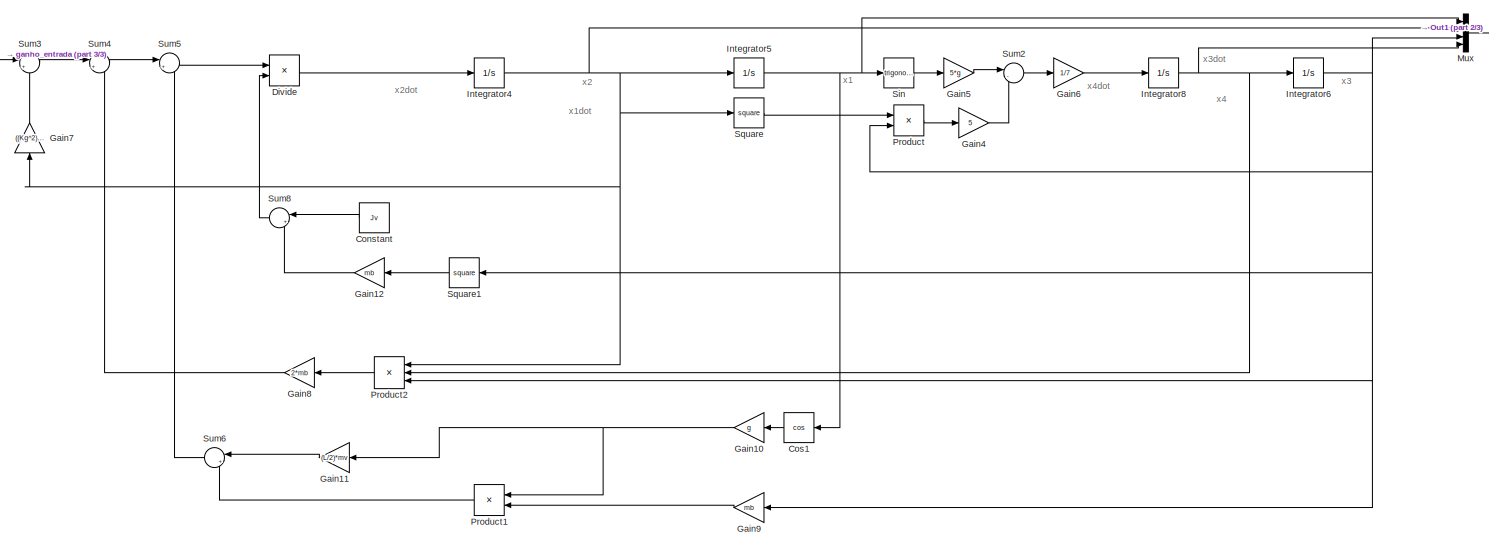
[diagram: Modelo ball and beam nao linear entrada nao arrumada - part 1/3, most of the canvas]
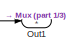
[diagram: Modelo ball and beam nao linear entrada nao arrumada - part 2/3, top right region]
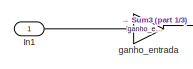
[diagram: Modelo ball and beam nao linear entrada nao arrumada - part 3/3, top left region]
BLOCK [SubSystem] Modelo ball and beam nao linear entrada nao arrumada
  Ports = [1, 1]
  RequestExecContextInheritance = off
BLOCK [Constant] Modelo ball and beam nao linear entrada nao arrumada/Constant
  NameLocation = top
  Value = Jv
BLOCK [Trigonometry] Modelo ball and beam nao linear entrada nao arrumada/Cos1
  NameLocation = top
  Operator = cos
  Ports = [1, 1]
BLOCK [Product] Modelo ball and beam nao linear entrada nao arrumada/Divide
  Inputs = */
  Ports = [2, 1]
BLOCK [Gain] Modelo ball and beam nao linear entrada nao arrumada/Gain10
  Gain = g
  NameLocation = top
BLOCK [Gain] Modelo ball and beam nao linear entrada nao arrumada/Gain11
  Gain = (L/2)*mv
  NameLocation = top
BLOCK [Gain] Modelo ball and beam nao linear entrada nao arrumada/Gain12
  Gain = mb
  NameLocation = top
BLOCK [Gain] Modelo ball and beam nao linear entrada nao arrumada/Gain4
  Gain = 5
BLOCK [Gain] Modelo ball and beam nao linear entrada nao arrumada/Gain5
  Gain = 5*g
BLOCK [Gain] Modelo ball and beam nao linear entrada nao arrumada/Gain6
  Gain = 1/7
BLOCK [Gain] Modelo ball and beam nao linear entrada nao arrumada/Gain7
  Gain = ((Kg^2) * Ki * N_total * (L^2))/(Rm * (d^2) )
  NameLocation = right
BLOCK [Gain] Modelo ball and beam nao linear entrada nao arrumada/Gain8
  Gain = 2*mb
  NameLocation = top
BLOCK [Gain] Modelo ball and beam nao linear entrada nao arrumada/Gain9
  Gain = mb
  NameLocation = top
BLOCK [Inport] Modelo ball and beam nao linear entrada nao arrumada/In1
BLOCK [Integrator] Modelo ball and beam nao linear entrada nao arrumada/Integrator4
  Ports = [1, 1]
BLOCK [Integrator] Modelo ball and beam nao linear entrada nao arrumada/Integrator5
  Ports = [1, 1]
BLOCK [Integrator] Modelo ball and beam nao linear entrada nao arrumada/Integrator6
  Ports = [1, 1]
BLOCK [Integrator] Modelo ball and beam nao linear entrada nao arrumada/Integrator8
  Ports = [1, 1]
BLOCK [Mux] Modelo ball and beam nao linear entrada nao arrumada/Mux
  DisplayOption = bar
  Ports = [4, 1]
BLOCK [Outport] Modelo ball and beam nao linear entrada nao arrumada/Out1
BLOCK [Product] Modelo ball and beam nao linear entrada nao arrumada/Product
  Ports = [2, 1]
BLOCK [Product] Modelo ball and beam nao linear entrada nao arrumada/Product1
  NameLocation = top
  Ports = [2, 1]
BLOCK [Product] Modelo ball and beam nao linear entrada nao arrumada/Product2
  Inputs = 3
  NameLocation = top
  Ports = [3, 1]
BLOCK [Trigonometry] Modelo ball and beam nao linear entrada nao arrumada/Sin
  Ports = [1, 1]
BLOCK [Math] Modelo ball and beam nao linear entrada nao arrumada/Square
  Operator = square
  Ports = [1, 1]
BLOCK [Math] Modelo ball and beam nao linear entrada nao arrumada/Square1
  NameLocation = top
  Operator = square
  Ports = [1, 1]
BLOCK [Sum] Modelo ball and beam nao linear entrada nao arrumada/Sum2
  Inputs = |-+
  NameLocation = top
  Ports = [2, 1]
BLOCK [Sum] Modelo ball and beam nao linear entrada nao arrumada/Sum3
  Inputs = |+-
  Ports = [2, 1]
BLOCK [Sum] Modelo ball and beam nao linear entrada nao arrumada/Sum4
  Inputs = |+-
  Ports = [2, 1]
BLOCK [Sum] Modelo ball and beam nao linear entrada nao arrumada/Sum5
  Inputs = |+-
  Ports = [2, 1]
BLOCK [Sum] Modelo ball and beam nao linear entrada nao arrumada/Sum6
  Inputs = |++
  NameLocation = top
  Ports = [2, 1]
BLOCK [Sum] Modelo ball and beam nao linear entrada nao arrumada/Sum8
  Inputs = |++
  NameLocation = top
  Ports = [2, 1]
BLOCK [Gain] Modelo ball and beam nao linear entrada nao arrumada/ganho_entrada
  Gain = ganho_entrada
BLOCK [Constant] Modelo ball and beam nao linear/Constant
  NameLocation = top
  Value = Jv
BLOCK [Trigonometry] Modelo ball and beam nao linear/Cos1
  NameLocation = top
  Operator = cos
  Ports = [1, 1]
BLOCK [Product] Modelo ball and beam nao linear/Divide
  Inputs = */
  Ports = [2, 1]
BLOCK [Gain] Modelo ball and beam nao linear/Gain10
  Gain = g
  NameLocation = top
BLOCK [Gain] Modelo ball and beam nao linear/Gain11
  Gain = (L/2)*mv
  NameLocation = top
BLOCK [Gain] Modelo ball and beam nao linear/Gain12
  Gain = mb
  NameLocation = top
BLOCK [Gain] Modelo ball and beam nao linear/Gain4
  Gain = 5
BLOCK [Gain] Modelo ball and beam nao linear/Gain5
  Gain = 5*g
BLOCK [Gain] Modelo ball and beam nao linear/Gain6
  Gain = 1/7
BLOCK [Gain] Modelo ball and beam nao linear/Gain7
  Gain = ((Kg^2) * Ki * N_total * (L^2))/(Rm * (d^2) )
  NameLocation = right
BLOCK [Gain] Modelo ball and beam nao linear/Gain8
  Gain = 2*mb
  NameLocation = top
BLOCK [Gain] Modelo ball and beam nao linear/Gain9
  Gain = mb
  NameLocation = top
BLOCK [Inport] Modelo ball and beam nao linear/In1
BLOCK [Integrator] Modelo ball and beam nao linear/Integrator4
  Ports = [1, 1]
BLOCK [Integrator] Modelo ball and beam nao linear/Integrator5
  Ports = [1, 1]
BLOCK [Integrator] Modelo ball and beam nao linear/Integrator6
  Ports = [1, 1]
BLOCK [Integrator] Modelo ball and beam nao linear/Integrator8
  Ports = [1, 1]
BLOCK [Outport] Modelo ball and beam nao linear/Out1
BLOCK [Product] Modelo ball and beam nao linear/Product
  Ports = [2, 1]
BLOCK [Product] Modelo ball and beam nao linear/Product1
  NameLocation = top
  Ports = [2, 1]
BLOCK [Product] Modelo ball and beam nao linear/Product2
  Inputs = 3
  NameLocation = top
  Ports = [3, 1]
BLOCK [Math] Modelo ball and beam nao linear/Square
  Operator = square
  Ports = [1, 1]
BLOCK [Math] Modelo ball and beam nao linear/Square1
  NameLocation = top
  Operator = square
  Ports = [1, 1]
BLOCK [Sum] Modelo ball and beam nao linear/Sum2
  Inputs = |-+
  NameLocation = top
  Ports = [2, 1]
BLOCK [Sum] Modelo ball and beam nao linear/Sum3
  Inputs = |+-
  Ports = [2, 1]
BLOCK [Sum] Modelo ball and beam nao linear/Sum4
  Inputs = |+-
  Ports = [2, 1]
BLOCK [Sum] Modelo ball and beam nao linear/Sum5
  Inputs = |+-
  Ports = [2, 1]
BLOCK [Sum] Modelo ball and beam nao linear/Sum6
  Inputs = |++
  NameLocation = top
  Ports = [2, 1]
BLOCK [Sum] Modelo ball and beam nao linear/Sum8
  Inputs = |++
  NameLocation = top
  Ports = [2, 1]
BLOCK [Gain] Modelo ball and beam nao linear/c1
BLOCK [Gain] Modelo ball and beam nao linear/ganho entrada
  Gain = (Kg * Ki *N_total * L)/(Rm * d)
BLOCK [Mux] Mux
  DisplayOption = bar
  Inputs = 2
  Ports = [2, 1]
BLOCK [Mux] Mux1
  DisplayOption = bar
  Inputs = 2
  Ports = [2, 1]
BLOCK [SubSystem] Observador
  NameLocation = top
  Ports = [2, 1]
  RequestExecContextInheritance = off
BLOCK [Gain] Observador/Gain
  Gain = A
  Multiplication = Matrix(K*u)
  NameLocation = top
BLOCK [Gain] Observador/Gain1
  Gain = C
  Multiplication = Matrix(K*u)
BLOCK [Gain] Observador/Gain2
  Gain = L_observador
  Multiplication = Matrix(K*u)
  NameLocation = top
BLOCK [Gain] Observador/Gain3
  Gain = B
  Multiplication = Matrix(K*u)
BLOCK [Integrator] Observador/Integrator
  Ports = [1, 1]
BLOCK [Sum] Observador/Sum
  Inputs = -+|
  NameLocation = left
  Ports = [2, 1]
BLOCK [Sum] Observador/Sum1
  Inputs = |++
  Ports = [2, 1]
BLOCK [Sum] Observador/Sum2
  Inputs = |++
  NameLocation = right
  Ports = [2, 1]
BLOCK [Inport] Observador/ref
BLOCK [Outport] Observador/x_chp
  NameLocation = right
BLOCK [Inport] Observador/y
  NameLocation = left
  Port = 2
BLOCK [SubSystem] Observador1
  NameLocation = top
  Ports = [2, 1]
  RequestExecContextInheritance = off
BLOCK [Gain] Observador1/Gain
  Gain = A
  Multiplication = Matrix(K*u)
  NameLocation = top
BLOCK [Gain] Observador1/Gain1
  Gain = C
  Multiplication = Matrix(K*u)
BLOCK [Gain] Observador1/Gain2
  Gain = L_observador
  Multiplication = Matrix(K*u)
  NameLocation = top
BLOCK [Gain] Observador1/Gain3
  Gain = B
  Multiplication = Matrix(K*u)
BLOCK [Integrator] Observador1/Integrator
  Ports = [1, 1]
BLOCK [Sum] Observador1/Sum
  Inputs = -+|
  NameLocation = left
  Ports = [2, 1]
BLOCK [Sum] Observador1/Sum1
  Inputs = |++
  Ports = [2, 1]
BLOCK [Sum] Observador1/Sum2
  Inputs = |++
  NameLocation = right
  Ports = [2, 1]
BLOCK [Inport] Observador1/ref
BLOCK [Outport] Observador1/x_chp
  NameLocation = right
BLOCK [Inport] Observador1/y
  NameLocation = left
  Port = 2
BLOCK [SubSystem] Observador2
  NameLocation = top
  Ports = [2, 1]
  RequestExecContextInheritance = off
BLOCK [Gain] Observador2/Gain
  Gain = A
  Multiplication = Matrix(K*u)
  NameLocation = top
BLOCK [Gain] Observador2/Gain1
  Gain = C
  Multiplication = Matrix(K*u)
BLOCK [Gain] Observador2/Gain2
  Gain = L_observador
  Multiplication = Matrix(K*u)
  NameLocation = top
BLOCK [Gain] Observador2/Gain3
  Gain = B
  Multiplication = Matrix(K*u)
BLOCK [Integrator] Observador2/Integrator
  Ports = [1, 1]
BLOCK [Sum] Observador2/Sum
  Inputs = -+|
  NameLocation = left
  Ports = [2, 1]
BLOCK [Sum] Observador2/Sum1
  Inputs = |++
  Ports = [2, 1]
BLOCK [Sum] Observador2/Sum2
  Inputs = |++
  NameLocation = right
  Ports = [2, 1]
BLOCK [Inport] Observador2/ref
BLOCK [Outport] Observador2/x_chp
  NameLocation = right
BLOCK [Inport] Observador2/y
  NameLocation = left
  Port = 2
BLOCK [SubSystem] Observador3
  NameLocation = top
  Ports = [2, 1]
  RequestExecContextInheritance = off
BLOCK [Gain] Observador3/Gain
  Gain = A
  Multiplication = Matrix(K*u)
  NameLocation = top
BLOCK [Gain] Observador3/Gain1
  Gain = C
  Multiplication = Matrix(K*u)
BLOCK [Gain] Observador3/Gain2
  Gain = L_observador
  Multiplication = Matrix(K*u)
  NameLocation = top
BLOCK [Gain] Observador3/Gain3
  Gain = B
  Multiplication = Matrix(K*u)
BLOCK [Integrator] Observador3/Integrator
  Ports = [1, 1]
BLOCK [Sum] Observador3/Sum
  Inputs = -+|
  NameLocation = left
  Ports = [2, 1]
BLOCK [Sum] Observador3/Sum1
  Inputs = |++
  Ports = [2, 1]
BLOCK [Sum] Observador3/Sum2
  Inputs = |++
  NameLocation = right
  Ports = [2, 1]
BLOCK [Inport] Observador3/ref
BLOCK [Outport] Observador3/x_chp
  NameLocation = right
BLOCK [Inport] Observador3/y
  NameLocation = left
  Port = 2
BLOCK [SubSystem] Observador4
  NameLocation = top
  Ports = [2, 1]
  RequestExecContextInheritance = off
BLOCK [Gain] Observador4/Gain
  Gain = A
  Multiplication = Matrix(K*u)
  NameLocation = top
BLOCK [Gain] Observador4/Gain1
  Gain = C
  Multiplication = Matrix(K*u)
BLOCK [Gain] Observador4/Gain2
  Gain = L_observador
  Multiplication = Matrix(K*u)
  NameLocation = top
BLOCK [Gain] Observador4/Gain3
  Gain = B
  Multiplication = Matrix(K*u)
BLOCK [Integrator] Observador4/Integrator
  Ports = [1, 1]
BLOCK [Sum] Observador4/Sum
  Inputs = -+|
  NameLocation = left
  Ports = [2, 1]
BLOCK [Sum] Observador4/Sum1
  Inputs = |++
  Ports = [2, 1]
BLOCK [Sum] Observador4/Sum2
  Inputs = |++
  NameLocation = right
  Ports = [2, 1]
BLOCK [Inport] Observador4/ref
BLOCK [Outport] Observador4/x_chp
  NameLocation = right
BLOCK [Inport] Observador4/y
  NameLocation = left
  Port = 2
BLOCK [Reference] PID Controller  REF=slpidlib/PID Controller
  Ports = [1, 1]
  SourceBlock = slpidlib/PID Controller
  SourceProductBaseCode = SL
  SourceType = PID 1dof
BLOCK [Reference] PID Controller2  REF=slpidlib/PID Controller
  Ports = [1, 1]
  SourceBlock = slpidlib/PID Controller
  SourceProductBaseCode = SL
  SourceType = PID 1dof
BLOCK [Saturate] Saturation
  LowerLimit = -L/2
  UpperLimit = L/2
BLOCK [Saturate] Saturation1
  LowerLimit = -L/2
  UpperLimit = L/2
BLOCK [Saturate] Saturation2
  LowerLimit = -L/2
  UpperLimit = L/2
BLOCK [Saturate] Saturation3
  LowerLimit = -L/2
  UpperLimit = L/2
BLOCK [Saturate] Saturation4
  LowerLimit = -L/2
  UpperLimit = L/2
BLOCK [Saturate] Saturation5
  LowerLimit = -L/2
  UpperLimit = L/2
BLOCK [Scope] Scope
  Floating = off
  NumInputPorts = 2
  Ports = [2]
  ScopeSpecificationString = Simulink.scopes.TimeScopeBlockCfg('CurrentConfiguration', extmgr.ConfigurationSet(extmgr.Configuration('Core','General UI',true),extmgr.Configuration('Core','Source UI',true),extmgr.Configuration('Sources','WiredSimulink',true,'DataLoggingVariableName','ScopeData2'),extmgr.Configuration('Visuals','Time Domain',true,'SerializedDisplays',{struct('MinYLimReal','-1.25','MaxYLimReal','1.25','YLabelReal...<+1417ch>
BLOCK [Scope] Scope1
  Floating = off
  NumInputPorts = 2
  Ports = [2]
  ScopeSpecificationString = Simulink.scopes.TimeScopeBlockCfg('CurrentConfiguration', extmgr.ConfigurationSet(extmgr.Configuration('Core','General UI',true),extmgr.Configuration('Core','Source UI',true),extmgr.Configuration('Sources','WiredSimulink',true,'DataLoggingVariableName','ScopeData1'),extmgr.Configuration('Visuals','Time Domain',true,'SerializedDisplays',{struct('MinYLimReal','-0.125','MaxYLimReal','1.125','YLabelRe...<+2071ch>
BLOCK [Scope] Scope10
  Floating = off
  NumInputPorts = 1
  Ports = [1]
  ScopeSpecificationString = Simulink.scopes.TimeScopeBlockCfg('CurrentConfiguration', extmgr.ConfigurationSet(extmgr.Configuration('Core','General UI',true),extmgr.Configuration('Core','Source UI',true),extmgr.Configuration('Sources','WiredSimulink',true,'DataLoggingVariableName','ScopeData1'),extmgr.Configuration('Visuals','Time Domain',true,'SerializedDisplays',{struct('MinYLimReal','-1.80705','MaxYLimReal','6.70449','YLab...<+1550ch>
BLOCK [Scope] Scope11
  Floating = off
  NumInputPorts = 2
  Ports = [2]
  ScopeSpecificationString = Simulink.scopes.TimeScopeBlockCfg('CurrentConfiguration', extmgr.ConfigurationSet(extmgr.Configuration('Core','General UI',true),extmgr.Configuration('Core','Source UI',true),extmgr.Configuration('Sources','WiredSimulink',true,'DataLoggingVariableName','ScopeData1'),extmgr.Configuration('Visuals','Time Domain',true,'SerializedDisplays',{struct('MinYLimReal','-0.02656','MaxYLimReal','0.23906','YLab...<+1431ch>
BLOCK [Scope] Scope12
  Floating = off
  NumInputPorts = 2
  Ports = [2]
  ScopeSpecificationString = Simulink.scopes.TimeScopeBlockCfg('CurrentConfiguration', extmgr.ConfigurationSet(extmgr.Configuration('Core','General UI',true),extmgr.Configuration('Core','Source UI',true),extmgr.Configuration('Sources','WiredSimulink',true,'DataLoggingVariableName','ScopeData1'),extmgr.Configuration('Visuals','Time Domain',true,'SerializedDisplays',{struct('MinYLimReal','-0.125','MaxYLimReal','1.125','YLabelRe...<+1413ch>
BLOCK [Scope] Scope13
  Floating = off
  NumInputPorts = 2
  Ports = [2]
  ScopeSpecificationString = Simulink.scopes.TimeScopeBlockCfg('CurrentConfiguration', extmgr.ConfigurationSet(extmgr.Configuration('Core','General UI',true,'FigureColor',[1 1 1]),extmgr.Configuration('Core','Source UI',true),extmgr.Configuration('Sources','WiredSimulink',true,'DataLoggingVariableName','ScopeData1'),extmgr.Configuration('Visuals','Time Domain',true,'SerializedDisplays',{struct('MinYLimReal','-0.26562','MaxYLi...<+2570ch>
BLOCK [Scope] Scope14
  Floating = off
  NumInputPorts = 2
  Ports = [2]
  ScopeSpecificationString = Simulink.scopes.TimeScopeBlockCfg('CurrentConfiguration', extmgr.ConfigurationSet(extmgr.Configuration('Core','General UI',true,'FigureColor',[1 1 1]),extmgr.Configuration('Core','Source UI',true),extmgr.Configuration('Sources','WiredSimulink',true,'DataLoggingVariableName','ScopeData8'),extmgr.Configuration('Visuals','Time Domain',true,'SerializedDisplays',{struct('MinYLimReal','-0.26562','MaxYLi...<+2570ch>
BLOCK [Scope] Scope15
  Floating = off
  NumInputPorts = 2
  Ports = [2]
  ScopeSpecificationString = Simulink.scopes.TimeScopeBlockCfg('CurrentConfiguration', extmgr.ConfigurationSet(extmgr.Configuration('Core','General UI',true,'FigureColor',[1 1 1]),extmgr.Configuration('Core','Source UI',true),extmgr.Configuration('Sources','WiredSimulink',true,'DataLoggingVariableName','ScopeData1'),extmgr.Configuration('Visuals','Time Domain',true,'SerializedDisplays',{struct('MinYLimReal','-264319.81433','M...<+1855ch>
BLOCK [Scope] Scope16
  Floating = off
  NumInputPorts = 2
  Ports = [2]
  ScopeSpecificationString = Simulink.scopes.TimeScopeBlockCfg('CurrentConfiguration', extmgr.ConfigurationSet(extmgr.Configuration('Core','General UI',true),extmgr.Configuration('Core','Source UI',true),extmgr.Configuration('Sources','WiredSimulink',true,'DataLoggingVariableName','ScopeData1'),extmgr.Configuration('Visuals','Time Domain',true,'SerializedDisplays',{struct('MinYLimReal','-0.45431','MaxYLimReal','0.4129','YLabe...<+1447ch>
BLOCK [Scope] Scope17
  Floating = off
  NumInputPorts = 2
  Ports = [2]
  ScopeSpecificationString = Simulink.scopes.TimeScopeBlockCfg('CurrentConfiguration', extmgr.ConfigurationSet(extmgr.Configuration('Core','General UI',true,'FigureColor',[1 1 1]),extmgr.Configuration('Core','Source UI',true),extmgr.Configuration('Sources','WiredSimulink',true,'DataLoggingVariableName','ScopeData3'),extmgr.Configuration('Visuals','Time Domain',true,'SerializedDisplays',{struct('MinYLimReal','-1.25','MaxYLimRe...<+1780ch>
BLOCK [Scope] Scope18
  Floating = off
  NumInputPorts = 2
  Ports = [2]
  ScopeSpecificationString = Simulink.scopes.TimeScopeBlockCfg('CurrentConfiguration', extmgr.ConfigurationSet(extmgr.Configuration('Core','General UI',true),extmgr.Configuration('Core','Source UI',true),extmgr.Configuration('Sources','WiredSimulink',true,'DataLoggingVariableName','ScopeData2'),extmgr.Configuration('Visuals','Time Domain',true,'SerializedDisplays',{struct('MinYLimReal','-1.33073','MaxYLimReal','1.18688','YLab...<+1420ch>
BLOCK [Scope] Scope19
  Floating = off
  NumInputPorts = 2
  Ports = [2]
  ScopeSpecificationString = Simulink.scopes.TimeScopeBlockCfg('CurrentConfiguration', extmgr.ConfigurationSet(extmgr.Configuration('Core','General UI',true),extmgr.Configuration('Core','Source UI',true),extmgr.Configuration('Sources','WiredSimulink',true,'DataLoggingVariableName','ScopeData3'),extmgr.Configuration('Visuals','Time Domain',true,'SerializedDisplays',{struct('MinYLimReal','-1.50075','MaxYLimReal','1.27786','YLab...<+1426ch>
BLOCK [Scope] Scope2
  Floating = off
  NumInputPorts = 2
  Ports = [2]
  ScopeSpecificationString = Simulink.scopes.TimeScopeBlockCfg('CurrentConfiguration', extmgr.ConfigurationSet(extmgr.Configuration('Core','General UI',true),extmgr.Configuration('Core','Source UI',true),extmgr.Configuration('Sources','WiredSimulink',true,'DataLoggingVariableName','ScopeData1'),extmgr.Configuration('Visuals','Time Domain',true,'SerializedDisplays',{struct('MinYLimReal','-0.125','MaxYLimReal','1.125','YLabelRe...<+2524ch>
BLOCK [Scope] Scope20
  Floating = off
  NumInputPorts = 2
  Ports = [2]
  ScopeSpecificationString = Simulink.scopes.TimeScopeBlockCfg('CurrentConfiguration', extmgr.ConfigurationSet(extmgr.Configuration('Core','General UI',true),extmgr.Configuration('Core','Source UI',true),extmgr.Configuration('Sources','WiredSimulink',true,'DataLoggingVariableName','ScopeData4'),extmgr.Configuration('Visuals','Time Domain',true,'SerializedDisplays',{struct('MinYLimReal','-1.37575','MaxYLimReal','0.15286','YLab...<+1420ch>
BLOCK [Scope] Scope21
  Floating = off
  NumInputPorts = 2
  Ports = [2]
  ScopeSpecificationString = Simulink.scopes.TimeScopeBlockCfg('CurrentConfiguration', extmgr.ConfigurationSet(extmgr.Configuration('Core','General UI',true),extmgr.Configuration('Core','Source UI',true),extmgr.Configuration('Sources','WiredSimulink',true,'DataLoggingVariableName','ScopeData5'),extmgr.Configuration('Visuals','Time Domain',true,'SerializedDisplays',{struct('MinYLimReal','-1.58542','MaxYLimReal','0.81877','YLab...<+1420ch>
BLOCK [Scope] Scope22
  Floating = off
  NumInputPorts = 2
  Ports = [2]
  ScopeSpecificationString = Simulink.scopes.TimeScopeBlockCfg('CurrentConfiguration', extmgr.ConfigurationSet(extmgr.Configuration('Core','General UI',true),extmgr.Configuration('Core','Source UI',true),extmgr.Configuration('Sources','WiredSimulink',true,'DataLoggingVariableName','ScopeData6'),extmgr.Configuration('Visuals','Time Domain',true,'SerializedDisplays',{struct('MinYLimReal','-0.02656','MaxYLimReal','0.23906','YLab...<+1431ch>
BLOCK [Scope] Scope23
  Floating = off
  NumInputPorts = 2
  Ports = [2]
  ScopeSpecificationString = Simulink.scopes.TimeScopeBlockCfg('CurrentConfiguration', extmgr.ConfigurationSet(extmgr.Configuration('Core','General UI',true),extmgr.Configuration('Core','Source UI',true),extmgr.Configuration('Sources','WiredSimulink',true,'DataLoggingVariableName','ScopeData7'),extmgr.Configuration('Visuals','Time Domain',true,'SerializedDisplays',{struct('MinYLimReal','-0.00633','MaxYLimReal','0.00396','YLab...<+1421ch>
BLOCK [Scope] Scope24
  Floating = off
  NumInputPorts = 2
  Ports = [2]
  ScopeSpecificationString = Simulink.scopes.TimeScopeBlockCfg('CurrentConfiguration', extmgr.ConfigurationSet(extmgr.Configuration('Core','General UI',true),extmgr.Configuration('Core','Source UI',true),extmgr.Configuration('Sources','WiredSimulink',true,'DataLoggingVariableName','ScopeData8'),extmgr.Configuration('Visuals','Time Domain',true,'SerializedDisplays',{struct('MinYLimReal','-0.01171','MaxYLimReal','0.01344','YLab...<+1422ch>
BLOCK [Scope] Scope25
  Floating = off
  NumInputPorts = 2
  Ports = [2]
  ScopeSpecificationString = Simulink.scopes.TimeScopeBlockCfg('CurrentConfiguration', extmgr.ConfigurationSet(extmgr.Configuration('Core','General UI',true),extmgr.Configuration('Core','Source UI',true),extmgr.Configuration('Sources','WiredSimulink',true,'DataLoggingVariableName','ScopeData9'),extmgr.Configuration('Visuals','Time Domain',true,'SerializedDisplays',{struct('MinYLimReal','-0.02656','MaxYLimReal','0.23906','YLab...<+1421ch>
BLOCK [Scope] Scope26
  Floating = off
  NumInputPorts = 2
  Ports = [2]
  ScopeSpecificationString = Simulink.scopes.TimeScopeBlockCfg('CurrentConfiguration', extmgr.ConfigurationSet(extmgr.Configuration('Core','General UI',true),extmgr.Configuration('Core','Source UI',true),extmgr.Configuration('Sources','WiredSimulink',true,'DataLoggingVariableName','ScopeData10'),extmgr.Configuration('Visuals','Time Domain',true,'SerializedDisplays',{struct('MinYLimReal','-0.00407','MaxYLimReal','0.03664','YLa...<+1422ch>
BLOCK [Scope] Scope27
  Floating = off
  NumInputPorts = 2
  Ports = [2]
  ScopeSpecificationString = Simulink.scopes.TimeScopeBlockCfg('CurrentConfiguration', extmgr.ConfigurationSet(extmgr.Configuration('Core','General UI',true,'FigureColor',[1 1 1]),extmgr.Configuration('Core','Source UI',true),extmgr.Configuration('Sources','WiredSimulink',true,'DataLoggingVariableName','ScopeData11'),extmgr.Configuration('Visuals','Time Domain',true,'SerializedDisplays',{struct('MinYLimReal','-264319.81433','...<+1856ch>
BLOCK [Scope] Scope28
  Floating = off
  NumInputPorts = 2
  Ports = [2]
  ScopeSpecificationString = Simulink.scopes.TimeScopeBlockCfg('CurrentConfiguration', extmgr.ConfigurationSet(extmgr.Configuration('Core','General UI',true),extmgr.Configuration('Core','Source UI',true),extmgr.Configuration('Sources','WiredSimulink',true,'DataLoggingVariableName','ScopeData12'),extmgr.Configuration('Visuals','Time Domain',true,'SerializedDisplays',{struct('MinYLimReal','-361849.40961','MaxYLimReal','3256437....<+1464ch>
BLOCK [Scope] Scope29
  Floating = off
  NumInputPorts = 2
  Ports = [2]
  ScopeSpecificationString = Simulink.scopes.TimeScopeBlockCfg('CurrentConfiguration', extmgr.ConfigurationSet(extmgr.Configuration('Core','General UI',true),extmgr.Configuration('Core','Source UI',true),extmgr.Configuration('Sources','WiredSimulink',true,'DataLoggingVariableName','ScopeData13'),extmgr.Configuration('Visuals','Time Domain',true,'SerializedDisplays',{struct('MinYLimReal','-1055706.23168','MaxYLimReal','9501313...<+1468ch>
BLOCK [Scope] Scope3
  Floating = off
  NumInputPorts = 2
  Ports = [2]
  ScopeSpecificationString = Simulink.scopes.TimeScopeBlockCfg('CurrentConfiguration', extmgr.ConfigurationSet(extmgr.Configuration('Core','General UI',true),extmgr.Configuration('Core','Source UI',true),extmgr.Configuration('Sources','WiredSimulink',true,'DataLoggingVariableName','ScopeData3'),extmgr.Configuration('Visuals','Time Domain',true,'SerializedDisplays',{struct('MinYLimReal','-1.50075','MaxYLimReal','1.27786','YLab...<+1424ch>
BLOCK [Scope] Scope30
  Floating = off
  NumInputPorts = 2
  Ports = [2]
  ScopeSpecificationString = Simulink.scopes.TimeScopeBlockCfg('CurrentConfiguration', extmgr.ConfigurationSet(extmgr.Configuration('Core','General UI',true),extmgr.Configuration('Core','Source UI',true),extmgr.Configuration('Sources','WiredSimulink',true,'DataLoggingVariableName','ScopeData14'),extmgr.Configuration('Visuals','Time Domain',true,'SerializedDisplays',{struct('MinYLimReal','-200179.02228','MaxYLimReal','1801611....<+1464ch>
BLOCK [Scope] Scope31
  Floating = off
  NumInputPorts = 2
  Ports = [2]
  ScopeSpecificationString = Simulink.scopes.TimeScopeBlockCfg('CurrentConfiguration', extmgr.ConfigurationSet(extmgr.Configuration('Core','General UI',true),extmgr.Configuration('Core','Source UI',true),extmgr.Configuration('Sources','WiredSimulink',true,'DataLoggingVariableName','ScopeData15'),extmgr.Configuration('Visuals','Time Domain',true,'SerializedDisplays',{struct('MinYLimReal','-3460739.47211','MaxYLimReal','402790....<+1466ch>
BLOCK [Scope] Scope32
  Floating = off
  NumInputPorts = 1
  Ports = [1]
  ScopeSpecificationString = Simulink.scopes.TimeScopeBlockCfg('CurrentConfiguration', extmgr.ConfigurationSet(extmgr.Configuration('Core','General UI',true),extmgr.Configuration('Core','Source UI',true),extmgr.Configuration('Sources','WiredSimulink',true,'DataLoggingVariableName','ScopeData1'),extmgr.Configuration('Visuals','Time Domain',true,'SerializedDisplays',{struct('MinYLimReal','-14.20408','MaxYLimReal','12.95357','YL...<+1371ch>
BLOCK [Scope] Scope33
  Floating = off
  NumInputPorts = 1
  Ports = [1]
  ScopeSpecificationString = Simulink.scopes.TimeScopeBlockCfg('CurrentConfiguration', extmgr.ConfigurationSet(extmgr.Configuration('Core','General UI',true),extmgr.Configuration('Core','Source UI',true),extmgr.Configuration('Sources','WiredSimulink',true,'DataLoggingVariableName','ScopeData2'),extmgr.Configuration('Visuals','Time Domain',true,'SerializedDisplays',{struct('MinYLimReal','-1.63002','MaxYLimReal','1.22014','YLab...<+1420ch>
BLOCK [Scope] Scope34
  Floating = off
  NumInputPorts = 1
  Ports = [1]
  ScopeSpecificationString = Simulink.scopes.TimeScopeBlockCfg('CurrentConfiguration', extmgr.ConfigurationSet(extmgr.Configuration('Core','General UI',true),extmgr.Configuration('Core','Source UI',true),extmgr.Configuration('Sources','WiredSimulink',true,'DataLoggingVariableName','ScopeData3'),extmgr.Configuration('Visuals','Time Domain',true,'SerializedDisplays',{struct('MinYLimReal','-1.1348','MaxYLimReal','1.53085','YLabe...<+1394ch>
BLOCK [Scope] Scope35
  Floating = off
  NumInputPorts = 1
  Ports = [1]
  ScopeSpecificationString = Simulink.scopes.TimeScopeBlockCfg('CurrentConfiguration', extmgr.ConfigurationSet(extmgr.Configuration('Core','General UI',true),extmgr.Configuration('Core','Source UI',true),extmgr.Configuration('Sources','WiredSimulink',true,'DataLoggingVariableName','ScopeData4'),extmgr.Configuration('Visuals','Time Domain',true,'SerializedDisplays',{struct('MinYLimReal','-0.30213','MaxYLimReal','2.45083','YLab...<+1364ch>
BLOCK [Scope] Scope36
  Floating = off
  NumInputPorts = 1
  Ports = [1]
  ScopeSpecificationString = Simulink.scopes.TimeScopeBlockCfg('CurrentConfiguration', extmgr.ConfigurationSet(extmgr.Configuration('Core','General UI',true),extmgr.Configuration('Core','Source UI',true),extmgr.Configuration('Sources','WiredSimulink',true,'DataLoggingVariableName','ScopeData5'),extmgr.Configuration('Visuals','Time Domain',true,'SerializedDisplays',{struct('MinYLimReal','-5.18946','MaxYLimReal','0.57661','YLab...<+1365ch>
BLOCK [Scope] Scope37
  Floating = off
  NumInputPorts = 1
  Ports = [1]
  ScopeSpecificationString = Simulink.scopes.TimeScopeBlockCfg('CurrentConfiguration', extmgr.ConfigurationSet(extmgr.Configuration('Core','General UI',true),extmgr.Configuration('Core','Source UI',true),extmgr.Configuration('Sources','WiredSimulink',true,'DataLoggingVariableName','ScopeData6'),extmgr.Configuration('Visuals','Time Domain',true,'SerializedDisplays',{struct('MinYLimReal','-0.0369','MaxYLimReal','0.24021','YLabe...<+1418ch>
BLOCK [Scope] Scope38
  Floating = off
  NumInputPorts = 1
  Ports = [1]
  ScopeSpecificationString = Simulink.scopes.TimeScopeBlockCfg('CurrentConfiguration', extmgr.ConfigurationSet(extmgr.Configuration('Core','General UI',true),extmgr.Configuration('Core','Source UI',true),extmgr.Configuration('Sources','WiredSimulink',true,'DataLoggingVariableName','ScopeData7'),extmgr.Configuration('Visuals','Time Domain',true,'SerializedDisplays',{struct('MinYLimReal','-2.74198','MaxYLimReal','0.30466','YLab...<+1365ch>
BLOCK [Scope] Scope39
  Floating = off
  NumInputPorts = 2
  Ports = [2]
  ScopeSpecificationString = Simulink.scopes.TimeScopeBlockCfg('CurrentConfiguration', extmgr.ConfigurationSet(extmgr.Configuration('Core','General UI',true),extmgr.Configuration('Core','Source UI',true),extmgr.Configuration('Sources','WiredSimulink',true,'DataLoggingVariableName','ScopeData1'),extmgr.Configuration('Visuals','Time Domain',true,'SerializedDisplays',{struct('MinYLimReal','-0.15784','MaxYLimReal','1.42056','YLab...<+1403ch>
BLOCK [Scope] Scope4
  Floating = off
  NumInputPorts = 2
  Ports = [2]
  ScopeSpecificationString = Simulink.scopes.TimeScopeBlockCfg('CurrentConfiguration', extmgr.ConfigurationSet(extmgr.Configuration('Core','General UI',true),extmgr.Configuration('Core','Source UI',true),extmgr.Configuration('Sources','WiredSimulink',true,'DataLoggingVariableName','ScopeData3'),extmgr.Configuration('Visuals','Time Domain',true,'SerializedDisplays',{struct('MinYLimReal','-1.25','MaxYLimReal','1.25','YLabelReal...<+2498ch>
BLOCK [Scope] Scope40
  Floating = off
  NumInputPorts = 1
  Ports = [1]
  ScopeSpecificationString = Simulink.scopes.TimeScopeBlockCfg('CurrentConfiguration', extmgr.ConfigurationSet(extmgr.Configuration('Core','General UI',true),extmgr.Configuration('Core','Source UI',true),extmgr.Configuration('Sources','WiredSimulink',true,'DataLoggingVariableName','ScopeData2'),extmgr.Configuration('Visuals','Time Domain',true,'SerializedDisplays',{struct('MinYLimReal','-21.37123','MaxYLimReal','32.89357','YL...<+1409ch>
BLOCK [Scope] Scope41
  Floating = off
  NumInputPorts = 2
  Ports = [2]
  ScopeSpecificationString = Simulink.scopes.TimeScopeBlockCfg('CurrentConfiguration', extmgr.ConfigurationSet(extmgr.Configuration('Core','General UI',true),extmgr.Configuration('Core','Source UI',true),extmgr.Configuration('Sources','WiredSimulink',true,'DataLoggingVariableName','ScopeData3'),extmgr.Configuration('Visuals','Time Domain',true,'SerializedDisplays',{struct('MinYLimReal','-67.78088','MaxYLimReal','610.02795','Y...<+1413ch>
BLOCK [Scope] Scope42
  Floating = off
  NumInputPorts = 1
  Ports = [1]
  ScopeSpecificationString = Simulink.scopes.TimeScopeBlockCfg('CurrentConfiguration', extmgr.ConfigurationSet(extmgr.Configuration('Core','General UI',true),extmgr.Configuration('Core','Source UI',true),extmgr.Configuration('Sources','WiredSimulink',true,'DataLoggingVariableName','ScopeData4'),extmgr.Configuration('Visuals','Time Domain',true,'SerializedDisplays',{struct('MinYLimReal','-50.35796','MaxYLimReal','444.9406','YL...<+1409ch>
BLOCK [Scope] Scope43
  Floating = off
  NumInputPorts = 1
  Ports = [1]
  ScopeSpecificationString = Simulink.scopes.TimeScopeBlockCfg('CurrentConfiguration', extmgr.ConfigurationSet(extmgr.Configuration('Core','General UI',true),extmgr.Configuration('Core','Source UI',true),extmgr.Configuration('Sources','WiredSimulink',true,'DataLoggingVariableName','ScopeData5'),extmgr.Configuration('Visuals','Time Domain',true,'SerializedDisplays',{struct('MinYLimReal','-5.3186','MaxYLimReal','5.44327','YLabe...<+1459ch>
BLOCK [Scope] Scope5
  Floating = off
  NumInputPorts = 2
  Ports = [2]
  ScopeSpecificationString = Simulink.scopes.TimeScopeBlockCfg('CurrentConfiguration', extmgr.ConfigurationSet(extmgr.Configuration('Core','General UI',true),extmgr.Configuration('Core','Source UI',true),extmgr.Configuration('Sources','WiredSimulink',true,'DataLoggingVariableName','ScopeData1'),extmgr.Configuration('Visuals','Time Domain',true,'SerializedDisplays',{struct('MinYLimReal','-1.0304','MaxYLimReal','1.2256','YLabel...<+1444ch>
BLOCK [Scope] Scope6
  Floating = off
  NumInputPorts = 2
  Ports = [2]
  ScopeSpecificationString = Simulink.scopes.TimeScopeBlockCfg('CurrentConfiguration', extmgr.ConfigurationSet(extmgr.Configuration('Core','General UI',true),extmgr.Configuration('Core','Source UI',true),extmgr.Configuration('Sources','WiredSimulink',true,'DataLoggingVariableName','ScopeData2'),extmgr.Configuration('Visuals','Time Domain',true,'SerializedDisplays',{struct('MinYLimReal','-1.2571','MaxYLimReal','1.31391','YLabe...<+1428ch>
BLOCK [Scope] Scope7
  Floating = off
  NumInputPorts = 1
  Ports = [1]
  ScopeSpecificationString = Simulink.scopes.TimeScopeBlockCfg('CurrentConfiguration', extmgr.ConfigurationSet(extmgr.Configuration('Core','General UI',true),extmgr.Configuration('Core','Source UI',true),extmgr.Configuration('Sources','WiredSimulink',true,'DataLoggingVariableName','ScopeData3'),extmgr.Configuration('Visuals','Time Domain',true,'SerializedDisplays',{struct('MinYLimReal','-1.80705','MaxYLimReal','6.70449','YLab...<+1550ch>
BLOCK [Scope] Scope8
  Floating = off
  NumInputPorts = 1
  Ports = [1]
  ScopeSpecificationString = Simulink.scopes.TimeScopeBlockCfg('CurrentConfiguration', extmgr.ConfigurationSet(extmgr.Configuration('Core','General UI',true),extmgr.Configuration('Core','Source UI',true),extmgr.Configuration('Sources','WiredSimulink',true,'DataLoggingVariableName','ScopeData4'),extmgr.Configuration('Visuals','Time Domain',true,'SerializedDisplays',{struct('MinYLimReal','-2332.64196','MaxYLimReal','20989.28273...<+1528ch>
BLOCK [Scope] Scope9
  Floating = off
  NumInputPorts = 2
  Ports = [2]
  ScopeSpecificationString = Simulink.scopes.TimeScopeBlockCfg('CurrentConfiguration', extmgr.ConfigurationSet(extmgr.Configuration('Core','General UI',true),extmgr.Configuration('Core','Source UI',true),extmgr.Configuration('Sources','WiredSimulink',true,'DataLoggingVariableName','ScopeData2'),extmgr.Configuration('Visuals','Time Domain',true,'SerializedDisplays',{struct('MinYLimReal','-17173.28051','MaxYLimReal','154540.865...<+1459ch>
BLOCK [Sin] Sine Wave
  Ports = [0, 1]
  SampleTime = 0
BLOCK [Sin] Sine Wave3
  Ports = [0, 1]
  SampleTime = 0
BLOCK [Sin] Sine Wave4
  Ports = [0, 1]
  SampleTime = 0
BLOCK [StateSpace] State-Space1
  A = A
  B = B
  C = C
  D = D
  InitialCondition = 0
  Ports = [1, 1]
BLOCK [Step] Step
  SampleTime = 0
BLOCK [Step] Step1
  SampleTime = 0
BLOCK [Step] Step10
  After = -2
  SampleTime = 0
  Time = 100
BLOCK [Step] Step11
  After = 0.2
  SampleTime = 0
BLOCK [Step] Step12
  After = -0.4
  SampleTime = 0
  Time = 100
BLOCK [Step] Step13
  SampleTime = 0
BLOCK [Step] Step14
  SampleTime = 0
BLOCK [Step] Step15
  After = -2
  SampleTime = 0
  Time = 100
BLOCK [Step] Step16
  SampleTime = 0
BLOCK [Step] Step17
  After = 0.05
  SampleTime = 0
BLOCK [Step] Step18
  SampleTime = 0
BLOCK [Step] Step19
  SampleTime = 0
BLOCK [Step] Step2
  SampleTime = 0
BLOCK [Step] Step3
  SampleTime = 0
BLOCK [Step] Step4
  SampleTime = 0
BLOCK [Step] Step5
  SampleTime = 0
BLOCK [Step] Step6
  SampleTime = 0
BLOCK [Step] Step7
  SampleTime = 0
BLOCK [Step] Step8
  SampleTime = 0
BLOCK [Step] Step9
  After = -2
  SampleTime = 0
  Time = 100
BLOCK [Sum] Sum
  Inputs = |+-
  Ports = [2, 1]
BLOCK [Sum] Sum1
  Inputs = |+-
  Ports = [2, 1]
BLOCK [Sum] Sum10
  Inputs = |++
  Ports = [2, 1]
BLOCK [Sum] Sum11
  Inputs = |+-
  Ports = [2, 1]
BLOCK [Sum] Sum12
  Inputs = |++
  Ports = [2, 1]
BLOCK [Sum] Sum13
  Inputs = |+-
  Ports = [2, 1]
BLOCK [Sum] Sum14
  Inputs = |+-
  Ports = [2, 1]
BLOCK [Sum] Sum15
  Inputs = |+-
  Ports = [2, 1]
BLOCK [Sum] Sum16
  Inputs = |+-
  Ports = [2, 1]
BLOCK [Sum] Sum17
  Inputs = |+-
  Ports = [2, 1]
BLOCK [Sum] Sum18
  Inputs = |+-
  Ports = [2, 1]
BLOCK [Sum] Sum19
  Inputs = |+-
  Ports = [2, 1]
BLOCK [Sum] Sum2
  Inputs = |+-
  Ports = [2, 1]
BLOCK [Sum] Sum20
  Inputs = |++
  Ports = [2, 1]
BLOCK [Sum] Sum21
  Inputs = |++
  Ports = [2, 1]
BLOCK [Sum] Sum22
  Inputs = |+-
  Ports = [2, 1]
BLOCK [Sum] Sum23
  Inputs = |+-
  Ports = [2, 1]
BLOCK [Sum] Sum24
  Inputs = |++
  Ports = [2, 1]
BLOCK [Sum] Sum25
  Inputs = |++
  Ports = [2, 1]
BLOCK [Sum] Sum26
  Inputs = |++
  Ports = [2, 1]
BLOCK [Sum] Sum27
  Inputs = |+-
  Ports = [2, 1]
BLOCK [Sum] Sum28
  Inputs = |+-
  Ports = [2, 1]
BLOCK [Sum] Sum29
  Inputs = |+-
  Ports = [2, 1]
BLOCK [Sum] Sum3
  Inputs = |++
  Ports = [2, 1]
BLOCK [Sum] Sum30
  Inputs = |++
  Ports = [2, 1]
BLOCK [Sum] Sum31
  Inputs = |+-
  Ports = [2, 1]
BLOCK [Sum] Sum32
  Inputs = |+-
  Ports = [2, 1]
BLOCK [Sum] Sum33
  Inputs = |+-
  Ports = [2, 1]
BLOCK [Sum] Sum34
  Inputs = |+-
  Ports = [2, 1]
BLOCK [Sum] Sum4
  Inputs = |+-
  Ports = [2, 1]
BLOCK [Sum] Sum5
  Inputs = |++
  Ports = [2, 1]
BLOCK [Sum] Sum6
  Inputs = |+-
  Ports = [2, 1]
BLOCK [Sum] Sum7
  Inputs = |+-
  Ports = [2, 1]
BLOCK [Sum] Sum8
  Inputs = |+-
  Ports = [2, 1]
BLOCK [Sum] Sum9
  Inputs = |+-
  Ports = [2, 1]
BLOCK [TransferFcn] Transfer Fcn
  Denominator = b
  Numerator = a
ANNOTATION (root): SIMULAÇÃO ALOCACAO DE POLOS
ANNOTATION (root): SIMULAÇÃO ALOCACAO NAO LINEAR
ANNOTATION (root): SIMULAÇÃO FUNCAO DE TRANSFERENCIA
ANNOTATION (root): SIMULAÇÃO LQR NAO LINEAR COM OBSERVADORES ENTRADA NORMAL
ANNOTATION (root): SIMULAÇÃO LQR NAO LINEAR ENTRADA NORMAL OBSERVADOR
ANNOTATION (root): SIMULAÇÃO LQR NAO LINEAR ENTRADA NORMAL
ANNOTATION (root): SIMULAÇÃO LQR
ANNOTATION (root): SIMULAÇÃO NÃO LINEAR
ANNOTATION (root): SIMULAÇÕES NULAS
ANNOTATION Modelo ball and beam nao linear: x1
ANNOTATION Modelo ball and beam nao linear: x1dot
ANNOTATION Modelo ball and beam nao linear: x2
ANNOTATION Modelo ball and beam nao linear: x2dot
ANNOTATION Modelo ball and beam nao linear: x3
ANNOTATION Modelo ball and beam nao linear: x3dot
ANNOTATION Modelo ball and beam nao linear: x4
ANNOTATION Modelo ball and beam nao linear: x4dot
ANNOTATION Modelo ball and beam nao linear entrada arrumada: x1
ANNOTATION Modelo ball and beam nao linear entrada arrumada: x1dot
ANNOTATION Modelo ball and beam nao linear entrada arrumada: x2
ANNOTATION Modelo ball and beam nao linear entrada arrumada: x2dot
ANNOTATION Modelo ball and beam nao linear entrada arrumada: x3
ANNOTATION Modelo ball and beam nao linear entrada arrumada: x3dot
ANNOTATION Modelo ball and beam nao linear entrada arrumada: x4
ANNOTATION Modelo ball and beam nao linear entrada arrumada: x4dot
ANNOTATION Modelo ball and beam nao linear entrada arrumada1: x1
ANNOTATION Modelo ball and beam nao linear entrada arrumada1: x1dot
ANNOTATION Modelo ball and beam nao linear entrada arrumada1: x2
ANNOTATION Modelo ball and beam nao linear entrada arrumada1: x2dot
ANNOTATION Modelo ball and beam nao linear entrada arrumada1: x3
ANNOTATION Modelo ball and beam nao linear entrada arrumada1: x3dot
ANNOTATION Modelo ball and beam nao linear entrada arrumada1: x4
ANNOTATION Modelo ball and beam nao linear entrada arrumada1: x4dot
ANNOTATION Modelo ball and beam nao linear entrada arrumada2: x1
ANNOTATION Modelo ball and beam nao linear entrada arrumada2: x1dot
ANNOTATION Modelo ball and beam nao linear entrada arrumada2: x2
ANNOTATION Modelo ball and beam nao linear entrada arrumada2: x2dot
ANNOTATION Modelo ball and beam nao linear entrada arrumada2: x3
ANNOTATION Modelo ball and beam nao linear entrada arrumada2: x3dot
ANNOTATION Modelo ball and beam nao linear entrada arrumada2: x4
ANNOTATION Modelo ball and beam nao linear entrada arrumada2: x4dot
ANNOTATION Modelo ball and beam nao linear entrada arrumada3: x1
ANNOTATION Modelo ball and beam nao linear entrada arrumada3: x1dot
ANNOTATION Modelo ball and beam nao linear entrada arrumada3: x2
ANNOTATION Modelo ball and beam nao linear entrada arrumada3: x2dot
ANNOTATION Modelo ball and beam nao linear entrada arrumada3: x3
ANNOTATION Modelo ball and beam nao linear entrada arrumada3: x3dot
ANNOTATION Modelo ball and beam nao linear entrada arrumada3: x4
ANNOTATION Modelo ball and beam nao linear entrada arrumada3: x4dot
ANNOTATION Modelo ball and beam nao linear entrada arrumada4: x1
ANNOTATION Modelo ball and beam nao linear entrada arrumada4: x1dot
ANNOTATION Modelo ball and beam nao linear entrada arrumada4: x2
ANNOTATION Modelo ball and beam nao linear entrada arrumada4: x2dot
ANNOTATION Modelo ball and beam nao linear entrada arrumada4: x3
ANNOTATION Modelo ball and beam nao linear entrada arrumada4: x3dot
ANNOTATION Modelo ball and beam nao linear entrada arrumada4: x4
ANNOTATION Modelo ball and beam nao linear entrada arrumada4: x4dot
ANNOTATION Modelo ball and beam nao linear entrada arrumada5: x1
ANNOTATION Modelo ball and beam nao linear entrada arrumada5: x1dot
ANNOTATION Modelo ball and beam nao linear entrada arrumada5: x2
ANNOTATION Modelo ball and beam nao linear entrada arrumada5: x2dot
ANNOTATION Modelo ball and beam nao linear entrada arrumada5: x3
ANNOTATION Modelo ball and beam nao linear entrada arrumada5: x3dot
ANNOTATION Modelo ball and beam nao linear entrada arrumada5: x4
ANNOTATION Modelo ball and beam nao linear entrada arrumada5: x4dot
ANNOTATION Modelo ball and beam nao linear entrada arrumada6: x1
ANNOTATION Modelo ball and beam nao linear entrada arrumada6: x1dot
ANNOTATION Modelo ball and beam nao linear entrada arrumada6: x2
ANNOTATION Modelo ball and beam nao linear entrada arrumada6: x2dot
ANNOTATION Modelo ball and beam nao linear entrada arrumada6: x3
ANNOTATION Modelo ball and beam nao linear entrada arrumada6: x3dot
ANNOTATION Modelo ball and beam nao linear entrada arrumada6: x4
ANNOTATION Modelo ball and beam nao linear entrada arrumada6: x4dot
ANNOTATION Modelo ball and beam nao linear entrada arrumada7: x1
ANNOTATION Modelo ball and beam nao linear entrada arrumada7: x1dot
ANNOTATION Modelo ball and beam nao linear entrada arrumada7: x2
ANNOTATION Modelo ball and beam nao linear entrada arrumada7: x2dot
ANNOTATION Modelo ball and beam nao linear entrada arrumada7: x3
ANNOTATION Modelo ball and beam nao linear entrada arrumada7: x3dot
ANNOTATION Modelo ball and beam nao linear entrada arrumada7: x4
ANNOTATION Modelo ball and beam nao linear entrada arrumada7: x4dot
ANNOTATION Modelo ball and beam nao linear entrada nao arrumada: x1
ANNOTATION Modelo ball and beam nao linear entrada nao arrumada: x1dot
ANNOTATION Modelo ball and beam nao linear entrada nao arrumada: x2
ANNOTATION Modelo ball and beam nao linear entrada nao arrumada: x2dot
ANNOTATION Modelo ball and beam nao linear entrada nao arrumada: x3
ANNOTATION Modelo ball and beam nao linear entrada nao arrumada: x3dot
ANNOTATION Modelo ball and beam nao linear entrada nao arrumada: x4
ANNOTATION Modelo ball and beam nao linear entrada nao arrumada: x4dot
LINE Demux1:1 -> Scope16:2
LINE Demux1:2 -> Scope18:2
LINE Demux1:3 -> Scope20:1
LINE Demux1:4 -> Scope21:2
LINE Demux2:1 -> Scope23:1
LINE Demux2:2 -> Scope24:1
LINE Demux2:3 -> Scope25:2
LINE Demux2:4 -> Scope26:1
LINE Demux3:1 -> Scope23:2
LINE Demux3:2 -> Scope24:2
LINE Demux3:3 -> Scope25:1
LINE Demux3:4 -> Scope26:2
LINE Demux4:1 -> Scope28:1
LINE Demux4:2 -> Scope29:1
LINE Demux4:3 -> Scope30:2
LINE Demux4:4 -> Scope31:1
LINE Demux5:1 -> Scope28:2
LINE Demux5:2 -> Scope29:2
LINE Demux5:3 -> Scope30:1
LINE Demux5:4 -> Scope31:2
LINE Demux:1 -> Scope16:1
LINE Demux:2 -> Scope18:1
LINE Demux:3 -> Scope20:2
LINE Demux:4 -> Scope21:1
LINE Gain10:1 -> Sum6:1
LINE Gain11:1 -> Modelo ball and beam nao linear entrada arrumada:1
LINE Gain12:1 -> Sum8:1
LINE Gain13:1 -> Scope5:2
LINE Gain14:1 -> Modelo ball and beam nao linear entrada arrumada1:1
LINE Gain15:1 -> Scope6:2
LINE Gain16:1 -> Sum9:1
LINE Gain17:1 -> Modelo ball and beam nao linear entrada nao arrumada:1
LINE Gain18:1 -> Scope9:2
LINE Gain19:1 -> Sum14:1
LINE Gain1:1 -> Gain2:1
LINE Gain20:1 -> Sum14:2
LINE Gain21:1 -> Sum10:1
LINE Gain22:1 -> Sum10:2
NET Gain23:1 -> Scope11:2, Sum11:2
LINE Gain24:1 -> Sum17:1
LINE Gain25:1 -> Sum17:2
LINE Gain26:1 -> Sum12:1
LINE Gain27:1 -> Sum12:2
NET Gain28:1 -> Scope12:2, Sum13:2
LINE Gain29:1 -> Sum15:2
LINE Gain2:1 -> Sum3:1
NET Gain30:1 -> Mux:2, Sum16:2
LINE Gain31:1 -> Sum15:1
LINE Gain32:1 -> Sum18:2
NET Gain33:1 -> Mux1:2, Sum19:2
LINE Gain34:1 -> Sum18:1
LINE Gain35:1 -> Sum22:2
NET Gain36:1 -> Observador:2, Scope15:2, Sum23:2
LINE Gain37:1 -> Sum22:1
LINE Gain38:1 -> Sum27:1
NET Gain39:1 -> Scope38:1, Sum32:1
LINE Gain3:1 -> Sum3:2
NET Gain40:1 -> Scope36:1, Sum32:2
LINE Gain41:1 -> Sum28:2
NET Gain42:1 -> Observador1:2, Scope17:2, Sum29:2
NET Gain43:1 -> Observador1:1, Sum28:1
LINE Gain44:1 -> Sum25:1
NET Gain45:1 -> Gain46:1, Observador2:1, Scope32:1
LINE Gain46:1 -> Sum26:1
LINE Gain47:1 -> Sum26:2
NET Gain48:1 -> Observador2:2, Scope19:2
LINE Gain49:1 -> Sum25:2
LINE Gain4:1 -> Scope:2
NET Gain50:1 -> Observador3:2, Scope22:2, Sum31:2
LINE Gain51:1 -> Sum33:2
NET Gain52:1 -> Observador4:2, Scope27:2, Sum34:2
LINE Gain53:1 -> Sum33:1
NET Gain54:1 -> MPC Controller1:1, Scope39:1
LINE Gain55:1 -> Scope41:1
LINE Gain5:1 -> Sum7:1
LINE Gain6:1 -> Gain7:1
LINE Gain7:1 -> Sum5:1
LINE Gain8:1 -> Sum5:2
LINE Gain9:1 -> Scope3:2
LINE Gain:1 -> Sum4:1
LINE Integrator10:1 -> Gain43:1
NET Integrator11:1 -> Demux2:1, Gain49:1, Gain50:1
LINE Integrator12:1 -> Gain39:1
LINE Integrator13:1 -> Gain53:1
NET Integrator1:1 -> Gain8:1, Gain9:1, Sum6:2
NET Integrator2:1 -> Gain20:1, Gain22:1, Gain23:1
NET Integrator3:1 -> Gain25:1, Gain27:1, Gain28:1
LINE Integrator4:1 -> Gain19:1
LINE Integrator5:1 -> Gain31:1
LINE Integrator6:1 -> Gain24:1
LINE Integrator7:1 -> Gain34:1
LINE Integrator8:1 -> Gain37:1
NET Integrator9:1 -> Demux:1, Gain47:1, Gain48:1
NET Integrator:1 -> Gain3:1, Gain4:1, Sum4:2
NET MPC Controller1:1 -> Modelo Linear2:1, Scope40:1
LINE Modelo Linear2/Gain21:1 -> Modelo Linear2/Sum10:1
LINE Modelo Linear2/Gain22:1 -> Modelo Linear2/Sum10:2
LINE Modelo Linear2/Input:1 -> Modelo Linear2/Gain21:1
NET Modelo Linear2/Integrator2:1 -> Modelo Linear2/Gain22:1, Modelo Linear2/Output:1
LINE Modelo Linear2/Sum10:1 -> Modelo Linear2/Integrator2:1
NET Modelo Linear2:1 -> Gain54:1, Scope43:1
LINE Modelo ball and beam nao linear entrada arrumada/Constant:1 -> Modelo ball and beam nao linear entrada arrumada/Sum8:1
LINE Modelo ball and beam nao linear entrada arrumada/Cos1:1 -> Modelo ball and beam nao linear entrada arrumada/Gain10:1
LINE Modelo ball and beam nao linear entrada arrumada/Divide:1 -> Modelo ball and beam nao linear entrada arrumada/Integrator4:1
NET Modelo ball and beam nao linear entrada arrumada/Gain10:1 -> Modelo ball and beam nao linear entrada arrumada/Gain11:1, Modelo ball and beam nao linear entrada arrumada/Product1:1
LINE Modelo ball and beam nao linear entrada arrumada/Gain11:1 -> Modelo ball and beam nao linear entrada arrumada/Sum6:1
LINE Modelo ball and beam nao linear entrada arrumada/Gain12:1 -> Modelo ball and beam nao linear entrada arrumada/Sum8:2
LINE Modelo ball and beam nao linear entrada arrumada/Gain4:1 -> Modelo ball and beam nao linear entrada arrumada/Sum2:2
LINE Modelo ball and beam nao linear entrada arrumada/Gain5:1 -> Modelo ball and beam nao linear entrada arrumada/Sum2:1
LINE Modelo ball and beam nao linear entrada arrumada/Gain6:1 -> Modelo ball and beam nao linear entrada arrumada/Integrator8:1
LINE Modelo ball and beam nao linear entrada arrumada/Gain8:1 -> Modelo ball and beam nao linear entrada arrumada/Sum:2
LINE Modelo ball and beam nao linear entrada arrumada/Gain9:1 -> Modelo ball and beam nao linear entrada arrumada/Product1:2
LINE Modelo ball and beam nao linear entrada arrumada/In1:1 -> Modelo ball and beam nao linear entrada arrumada/Sum3:1
NET Modelo ball and beam nao linear entrada arrumada/Integrator4:1 -> Modelo ball and beam nao linear entrada arrumada/Integrator5:1, Modelo ball and beam nao linear entrada arrumada/Mux:2, Modelo ball and beam nao linear entrada arrumada/Product2:1, Modelo ball and beam nao linear entrada arrumada/Square:1
NET Modelo ball and beam nao linear entrada arrumada/Integrator5:1 -> Modelo ball and beam nao linear entrada arrumada/Cos1:1, Modelo ball and beam nao linear entrada arrumada/Mux:1, Modelo ball and beam nao linear entrada arrumada/Sin:1
NET Modelo ball and beam nao linear entrada arrumada/Integrator6:1 -> Modelo ball and beam nao linear entrada arrumada/Gain9:1, Modelo ball and beam nao linear entrada arrumada/Mux:3, Modelo ball and beam nao linear entrada arrumada/Product2:3, Modelo ball and beam nao linear entrada arrumada/Product:2, Modelo ball and beam nao linear entrada arrumada/Square1:1
NET Modelo ball and beam nao linear entrada arrumada/Integrator8:1 -> Modelo ball and beam nao linear entrada arrumada/Integrator6:1, Modelo ball and beam nao linear entrada arrumada/Mux:4, Modelo ball and beam nao linear entrada arrumada/Product2:2
LINE Modelo ball and beam nao linear entrada arrumada/Mux:1 -> Modelo ball and beam nao linear entrada arrumada/Out1:1
LINE Modelo ball and beam nao linear entrada arrumada/Product1:1 -> Modelo ball and beam nao linear entrada arrumada/Sum6:2
LINE Modelo ball and beam nao linear entrada arrumada/Product2:1 -> Modelo ball and beam nao linear entrada arrumada/Gain8:1
LINE Modelo ball and beam nao linear entrada arrumada/Product:1 -> Modelo ball and beam nao linear entrada arrumada/Gain4:1
LINE Modelo ball and beam nao linear entrada arrumada/Sin:1 -> Modelo ball and beam nao linear entrada arrumada/Gain5:1
LINE Modelo ball and beam nao linear entrada arrumada/Square1:1 -> Modelo ball and beam nao linear entrada arrumada/Gain12:1
LINE Modelo ball and beam nao linear entrada arrumada/Square:1 -> Modelo ball and beam nao linear entrada arrumada/Product:1
LINE Modelo ball and beam nao linear entrada arrumada/Sum1:1 -> Modelo ball and beam nao linear entrada arrumada/Divide:1
LINE Modelo ball and beam nao linear entrada arrumada/Sum2:1 -> Modelo ball and beam nao linear entrada arrumada/Gain6:1
LINE Modelo ball and beam nao linear entrada arrumada/Sum3:1 -> Modelo ball and beam nao linear entrada arrumada/Sum:1
LINE Modelo ball and beam nao linear entrada arrumada/Sum6:1 -> Modelo ball and beam nao linear entrada arrumada/Sum1:2
LINE Modelo ball and beam nao linear entrada arrumada/Sum8:1 -> Modelo ball and beam nao linear entrada arrumada/Divide:2
LINE Modelo ball and beam nao linear entrada arrumada/Sum:1 -> Modelo ball and beam nao linear entrada arrumada/Sum1:1
LINE Modelo ball and beam nao linear entrada arrumada1/Constant:1 -> Modelo ball and beam nao linear entrada arrumada1/Sum8:1
LINE Modelo ball and beam nao linear entrada arrumada1/Cos1:1 -> Modelo ball and beam nao linear entrada arrumada1/Gain10:1
LINE Modelo ball and beam nao linear entrada arrumada1/Divide:1 -> Modelo ball and beam nao linear entrada arrumada1/Integrator4:1
NET Modelo ball and beam nao linear entrada arrumada1/Gain10:1 -> Modelo ball and beam nao linear entrada arrumada1/Gain11:1, Modelo ball and beam nao linear entrada arrumada1/Product1:1
LINE Modelo ball and beam nao linear entrada arrumada1/Gain11:1 -> Modelo ball and beam nao linear entrada arrumada1/Sum6:1
LINE Modelo ball and beam nao linear entrada arrumada1/Gain12:1 -> Modelo ball and beam nao linear entrada arrumada1/Sum8:2
LINE Modelo ball and beam nao linear entrada arrumada1/Gain2:1 -> Modelo ball and beam nao linear entrada arrumada1/Sum3:2
LINE Modelo ball and beam nao linear entrada arrumada1/Gain4:1 -> Modelo ball and beam nao linear entrada arrumada1/Sum2:2
LINE Modelo ball and beam nao linear entrada arrumada1/Gain5:1 -> Modelo ball and beam nao linear entrada arrumada1/Sum2:1
LINE Modelo ball and beam nao linear entrada arrumada1/Gain6:1 -> Modelo ball and beam nao linear entrada arrumada1/Integrator8:1
LINE Modelo ball and beam nao linear entrada arrumada1/Gain8:1 -> Modelo ball and beam nao linear entrada arrumada1/Sum4:2
LINE Modelo ball and beam nao linear entrada arrumada1/Gain9:1 -> Modelo ball and beam nao linear entrada arrumada1/Product1:2
LINE Modelo ball and beam nao linear entrada arrumada1/Gain:1 -> Modelo ball and beam nao linear entrada arrumada1/Sum3:1
LINE Modelo ball and beam nao linear entrada arrumada1/In1:1 -> Modelo ball and beam nao linear entrada arrumada1/Gain:1
NET Modelo ball and beam nao linear entrada arrumada1/Integrator4:1 -> Modelo ball and beam nao linear entrada arrumada1/Gain2:1, Modelo ball and beam nao linear entrada arrumada1/Integrator5:1, Modelo ball and beam nao linear entrada arrumada1/Mux:2, Modelo ball and beam nao linear entrada arrumada1/Product2:1, Modelo ball and beam nao linear entrada arrumada1/Square:1
NET Modelo ball and beam nao linear entrada arrumada1/Integrator5:1 -> Modelo ball and beam nao linear entrada arrumada1/Cos1:1, Modelo ball and beam nao linear entrada arrumada1/Mux:1, Modelo ball and beam nao linear entrada arrumada1/Sin:1
NET Modelo ball and beam nao linear entrada arrumada1/Integrator6:1 -> Modelo ball and beam nao linear entrada arrumada1/Gain9:1, Modelo ball and beam nao linear entrada arrumada1/Mux:3, Modelo ball and beam nao linear entrada arrumada1/Product2:3, Modelo ball and beam nao linear entrada arrumada1/Product:2, Modelo ball and beam nao linear entrada arrumada1/Square1:1
NET Modelo ball and beam nao linear entrada arrumada1/Integrator8:1 -> Modelo ball and beam nao linear entrada arrumada1/Integrator6:1, Modelo ball and beam nao linear entrada arrumada1/Mux:4, Modelo ball and beam nao linear entrada arrumada1/Product2:2
LINE Modelo ball and beam nao linear entrada arrumada1/Mux:1 -> Modelo ball and beam nao linear entrada arrumada1/Out1:1
LINE Modelo ball and beam nao linear entrada arrumada1/Product1:1 -> Modelo ball and beam nao linear entrada arrumada1/Sum6:2
LINE Modelo ball and beam nao linear entrada arrumada1/Product2:1 -> Modelo ball and beam nao linear entrada arrumada1/Gain8:1
LINE Modelo ball and beam nao linear entrada arrumada1/Product:1 -> Modelo ball and beam nao linear entrada arrumada1/Gain4:1
LINE Modelo ball and beam nao linear entrada arrumada1/Sin:1 -> Modelo ball and beam nao linear entrada arrumada1/Gain5:1
LINE Modelo ball and beam nao linear entrada arrumada1/Square1:1 -> Modelo ball and beam nao linear entrada arrumada1/Gain12:1
LINE Modelo ball and beam nao linear entrada arrumada1/Square:1 -> Modelo ball and beam nao linear entrada arrumada1/Product:1
LINE Modelo ball and beam nao linear entrada arrumada1/Sum2:1 -> Modelo ball and beam nao linear entrada arrumada1/Gain6:1
LINE Modelo ball and beam nao linear entrada arrumada1/Sum3:1 -> Modelo ball and beam nao linear entrada arrumada1/Sum4:1
LINE Modelo ball and beam nao linear entrada arrumada1/Sum4:1 -> Modelo ball and beam nao linear entrada arrumada1/Sum5:1
LINE Modelo ball and beam nao linear entrada arrumada1/Sum5:1 -> Modelo ball and beam nao linear entrada arrumada1/Divide:1
LINE Modelo ball and beam nao linear entrada arrumada1/Sum6:1 -> Modelo ball and beam nao linear entrada arrumada1/Sum5:2
LINE Modelo ball and beam nao linear entrada arrumada1/Sum8:1 -> Modelo ball and beam nao linear entrada arrumada1/Divide:2
NET Modelo ball and beam nao linear entrada arrumada1:1 -> Gain15:1, Scope8:1, Sum8:2
LINE Modelo ball and beam nao linear entrada arrumada2/Constant:1 -> Modelo ball and beam nao linear entrada arrumada2/Sum8:1
LINE Modelo ball and beam nao linear entrada arrumada2/Cos1:1 -> Modelo ball and beam nao linear entrada arrumada2/Gain10:1
LINE Modelo ball and beam nao linear entrada arrumada2/Divide:1 -> Modelo ball and beam nao linear entrada arrumada2/Integrator4:1
NET Modelo ball and beam nao linear entrada arrumada2/Gain10:1 -> Modelo ball and beam nao linear entrada arrumada2/Gain11:1, Modelo ball and beam nao linear entrada arrumada2/Product1:1
LINE Modelo ball and beam nao linear entrada arrumada2/Gain11:1 -> Modelo ball and beam nao linear entrada arrumada2/Sum6:1
LINE Modelo ball and beam nao linear entrada arrumada2/Gain12:1 -> Modelo ball and beam nao linear entrada arrumada2/Sum8:2
LINE Modelo ball and beam nao linear entrada arrumada2/Gain4:1 -> Modelo ball and beam nao linear entrada arrumada2/Sum2:2
LINE Modelo ball and beam nao linear entrada arrumada2/Gain5:1 -> Modelo ball and beam nao linear entrada arrumada2/Sum2:1
LINE Modelo ball and beam nao linear entrada arrumada2/Gain6:1 -> Modelo ball and beam nao linear entrada arrumada2/Integrator8:1
LINE Modelo ball and beam nao linear entrada arrumada2/Gain8:1 -> Modelo ball and beam nao linear entrada arrumada2/Sum:2
LINE Modelo ball and beam nao linear entrada arrumada2/Gain9:1 -> Modelo ball and beam nao linear entrada arrumada2/Product1:2
LINE Modelo ball and beam nao linear entrada arrumada2/In1:1 -> Modelo ball and beam nao linear entrada arrumada2/Sum:1
NET Modelo ball and beam nao linear entrada arrumada2/Integrator4:1 -> Modelo ball and beam nao linear entrada arrumada2/Integrator5:1, Modelo ball and beam nao linear entrada arrumada2/Mux:2, Modelo ball and beam nao linear entrada arrumada2/Product2:1, Modelo ball and beam nao linear entrada arrumada2/Square:1
NET Modelo ball and beam nao linear entrada arrumada2/Integrator5:1 -> Modelo ball and beam nao linear entrada arrumada2/Cos1:1, Modelo ball and beam nao linear entrada arrumada2/Mux:1, Modelo ball and beam nao linear entrada arrumada2/Sin:1
NET Modelo ball and beam nao linear entrada arrumada2/Integrator6:1 -> Modelo ball and beam nao linear entrada arrumada2/Gain9:1, Modelo ball and beam nao linear entrada arrumada2/Mux:3, Modelo ball and beam nao linear entrada arrumada2/Product2:3, Modelo ball and beam nao linear entrada arrumada2/Product:2, Modelo ball and beam nao linear entrada arrumada2/Square1:1
NET Modelo ball and beam nao linear entrada arrumada2/Integrator8:1 -> Modelo ball and beam nao linear entrada arrumada2/Integrator6:1, Modelo ball and beam nao linear entrada arrumada2/Mux:4, Modelo ball and beam nao linear entrada arrumada2/Product2:2
LINE Modelo ball and beam nao linear entrada arrumada2/Mux:1 -> Modelo ball and beam nao linear entrada arrumada2/Out1:1
LINE Modelo ball and beam nao linear entrada arrumada2/Product1:1 -> Modelo ball and beam nao linear entrada arrumada2/Sum6:2
LINE Modelo ball and beam nao linear entrada arrumada2/Product2:1 -> Modelo ball and beam nao linear entrada arrumada2/Gain8:1
LINE Modelo ball and beam nao linear entrada arrumada2/Product:1 -> Modelo ball and beam nao linear entrada arrumada2/Gain4:1
LINE Modelo ball and beam nao linear entrada arrumada2/Sin:1 -> Modelo ball and beam nao linear entrada arrumada2/Gain5:1
LINE Modelo ball and beam nao linear entrada arrumada2/Square1:1 -> Modelo ball and beam nao linear entrada arrumada2/Gain12:1
LINE Modelo ball and beam nao linear entrada arrumada2/Square:1 -> Modelo ball and beam nao linear entrada arrumada2/Product:1
LINE Modelo ball and beam nao linear entrada arrumada2/Sum1:1 -> Modelo ball and beam nao linear entrada arrumada2/Divide:1
LINE Modelo ball and beam nao linear entrada arrumada2/Sum2:1 -> Modelo ball and beam nao linear entrada arrumada2/Gain6:1
LINE Modelo ball and beam nao linear entrada arrumada2/Sum6:1 -> Modelo ball and beam nao linear entrada arrumada2/Sum1:2
LINE Modelo ball and beam nao linear entrada arrumada2/Sum8:1 -> Modelo ball and beam nao linear entrada arrumada2/Divide:2
LINE Modelo ball and beam nao linear entrada arrumada2/Sum:1 -> Modelo ball and beam nao linear entrada arrumada2/Sum1:1
NET Modelo ball and beam nao linear entrada arrumada2:1 -> Gain29:1, Gain30:1
LINE Modelo ball and beam nao linear entrada arrumada3/Constant:1 -> Modelo ball and beam nao linear entrada arrumada3/Sum8:1
LINE Modelo ball and beam nao linear entrada arrumada3/Cos1:1 -> Modelo ball and beam nao linear entrada arrumada3/Gain10:1
LINE Modelo ball and beam nao linear entrada arrumada3/Divide:1 -> Modelo ball and beam nao linear entrada arrumada3/Integrator4:1
NET Modelo ball and beam nao linear entrada arrumada3/Gain10:1 -> Modelo ball and beam nao linear entrada arrumada3/Gain11:1, Modelo ball and beam nao linear entrada arrumada3/Product1:1
LINE Modelo ball and beam nao linear entrada arrumada3/Gain11:1 -> Modelo ball and beam nao linear entrada arrumada3/Sum6:1
LINE Modelo ball and beam nao linear entrada arrumada3/Gain12:1 -> Modelo ball and beam nao linear entrada arrumada3/Sum8:2
LINE Modelo ball and beam nao linear entrada arrumada3/Gain4:1 -> Modelo ball and beam nao linear entrada arrumada3/Sum2:2
LINE Modelo ball and beam nao linear entrada arrumada3/Gain5:1 -> Modelo ball and beam nao linear entrada arrumada3/Sum2:1
LINE Modelo ball and beam nao linear entrada arrumada3/Gain6:1 -> Modelo ball and beam nao linear entrada arrumada3/Integrator8:1
LINE Modelo ball and beam nao linear entrada arrumada3/Gain8:1 -> Modelo ball and beam nao linear entrada arrumada3/Sum:2
LINE Modelo ball and beam nao linear entrada arrumada3/Gain9:1 -> Modelo ball and beam nao linear entrada arrumada3/Product1:2
LINE Modelo ball and beam nao linear entrada arrumada3/In1:1 -> Modelo ball and beam nao linear entrada arrumada3/Sum3:1
NET Modelo ball and beam nao linear entrada arrumada3/Integrator4:1 -> Modelo ball and beam nao linear entrada arrumada3/Integrator5:1, Modelo ball and beam nao linear entrada arrumada3/Mux:2, Modelo ball and beam nao linear entrada arrumada3/Product2:1, Modelo ball and beam nao linear entrada arrumada3/Square:1
NET Modelo ball and beam nao linear entrada arrumada3/Integrator5:1 -> Modelo ball and beam nao linear entrada arrumada3/Cos1:1, Modelo ball and beam nao linear entrada arrumada3/Mux:1, Modelo ball and beam nao linear entrada arrumada3/Sin:1
NET Modelo ball and beam nao linear entrada arrumada3/Integrator6:1 -> Modelo ball and beam nao linear entrada arrumada3/Gain9:1, Modelo ball and beam nao linear entrada arrumada3/Mux:3, Modelo ball and beam nao linear entrada arrumada3/Product2:3, Modelo ball and beam nao linear entrada arrumada3/Product:2, Modelo ball and beam nao linear entrada arrumada3/Square1:1
NET Modelo ball and beam nao linear entrada arrumada3/Integrator8:1 -> Modelo ball and beam nao linear entrada arrumada3/Integrator6:1, Modelo ball and beam nao linear entrada arrumada3/Mux:4, Modelo ball and beam nao linear entrada arrumada3/Product2:2
LINE Modelo ball and beam nao linear entrada arrumada3/Mux:1 -> Modelo ball and beam nao linear entrada arrumada3/Out1:1
LINE Modelo ball and beam nao linear entrada arrumada3/Product1:1 -> Modelo ball and beam nao linear entrada arrumada3/Sum6:2
LINE Modelo ball and beam nao linear entrada arrumada3/Product2:1 -> Modelo ball and beam nao linear entrada arrumada3/Gain8:1
LINE Modelo ball and beam nao linear entrada arrumada3/Product:1 -> Modelo ball and beam nao linear entrada arrumada3/Gain4:1
LINE Modelo ball and beam nao linear entrada arrumada3/Sin:1 -> Modelo ball and beam nao linear entrada arrumada3/Gain5:1
LINE Modelo ball and beam nao linear entrada arrumada3/Square1:1 -> Modelo ball and beam nao linear entrada arrumada3/Gain12:1
LINE Modelo ball and beam nao linear entrada arrumada3/Square:1 -> Modelo ball and beam nao linear entrada arrumada3/Product:1
LINE Modelo ball and beam nao linear entrada arrumada3/Sum1:1 -> Modelo ball and beam nao linear entrada arrumada3/Divide:1
LINE Modelo ball and beam nao linear entrada arrumada3/Sum2:1 -> Modelo ball and beam nao linear entrada arrumada3/Gain6:1
LINE Modelo ball and beam nao linear entrada arrumada3/Sum3:1 -> Modelo ball and beam nao linear entrada arrumada3/Sum:1
LINE Modelo ball and beam nao linear entrada arrumada3/Sum6:1 -> Modelo ball and beam nao linear entrada arrumada3/Sum1:2
LINE Modelo ball and beam nao linear entrada arrumada3/Sum8:1 -> Modelo ball and beam nao linear entrada arrumada3/Divide:2
LINE Modelo ball and beam nao linear entrada arrumada3/Sum:1 -> Modelo ball and beam nao linear entrada arrumada3/Sum1:1
NET Modelo ball and beam nao linear entrada arrumada3:1 -> Gain32:1, Gain33:1
LINE Modelo ball and beam nao linear entrada arrumada4/Constant:1 -> Modelo ball and beam nao linear entrada arrumada4/Sum8:1
LINE Modelo ball and beam nao linear entrada arrumada4/Cos1:1 -> Modelo ball and beam nao linear entrada arrumada4/Gain10:1
LINE Modelo ball and beam nao linear entrada arrumada4/Divide:1 -> Modelo ball and beam nao linear entrada arrumada4/Integrator4:1
NET Modelo ball and beam nao linear entrada arrumada4/Gain10:1 -> Modelo ball and beam nao linear entrada arrumada4/Gain11:1, Modelo ball and beam nao linear entrada arrumada4/Product1:1
LINE Modelo ball and beam nao linear entrada arrumada4/Gain11:1 -> Modelo ball and beam nao linear entrada arrumada4/Sum6:1
LINE Modelo ball and beam nao linear entrada arrumada4/Gain12:1 -> Modelo ball and beam nao linear entrada arrumada4/Sum8:2
LINE Modelo ball and beam nao linear entrada arrumada4/Gain4:1 -> Modelo ball and beam nao linear entrada arrumada4/Sum2:2
LINE Modelo ball and beam nao linear entrada arrumada4/Gain5:1 -> Modelo ball and beam nao linear entrada arrumada4/Sum2:1
LINE Modelo ball and beam nao linear entrada arrumada4/Gain6:1 -> Modelo ball and beam nao linear entrada arrumada4/Integrator8:1
LINE Modelo ball and beam nao linear entrada arrumada4/Gain8:1 -> Modelo ball and beam nao linear entrada arrumada4/Sum:2
LINE Modelo ball and beam nao linear entrada arrumada4/Gain9:1 -> Modelo ball and beam nao linear entrada arrumada4/Product1:2
LINE Modelo ball and beam nao linear entrada arrumada4/In1:1 -> Modelo ball and beam nao linear entrada arrumada4/Sum:1
NET Modelo ball and beam nao linear entrada arrumada4/Integrator4:1 -> Modelo ball and beam nao linear entrada arrumada4/Integrator5:1, Modelo ball and beam nao linear entrada arrumada4/Mux:2, Modelo ball and beam nao linear entrada arrumada4/Product2:1, Modelo ball and beam nao linear entrada arrumada4/Square:1
NET Modelo ball and beam nao linear entrada arrumada4/Integrator5:1 -> Modelo ball and beam nao linear entrada arrumada4/Cos1:1, Modelo ball and beam nao linear entrada arrumada4/Mux:1, Modelo ball and beam nao linear entrada arrumada4/Sin:1
NET Modelo ball and beam nao linear entrada arrumada4/Integrator6:1 -> Modelo ball and beam nao linear entrada arrumada4/Gain9:1, Modelo ball and beam nao linear entrada arrumada4/Mux:3, Modelo ball and beam nao linear entrada arrumada4/Product2:3, Modelo ball and beam nao linear entrada arrumada4/Product:2, Modelo ball and beam nao linear entrada arrumada4/Square1:1
NET Modelo ball and beam nao linear entrada arrumada4/Integrator8:1 -> Modelo ball and beam nao linear entrada arrumada4/Integrator6:1, Modelo ball and beam nao linear entrada arrumada4/Mux:4, Modelo ball and beam nao linear entrada arrumada4/Product2:2
LINE Modelo ball and beam nao linear entrada arrumada4/Mux:1 -> Modelo ball and beam nao linear entrada arrumada4/y:1
LINE Modelo ball and beam nao linear entrada arrumada4/Product1:1 -> Modelo ball and beam nao linear entrada arrumada4/Sum6:2
LINE Modelo ball and beam nao linear entrada arrumada4/Product2:1 -> Modelo ball and beam nao linear entrada arrumada4/Gain8:1
LINE Modelo ball and beam nao linear entrada arrumada4/Product:1 -> Modelo ball and beam nao linear entrada arrumada4/Gain4:1
LINE Modelo ball and beam nao linear entrada arrumada4/Sin:1 -> Modelo ball and beam nao linear entrada arrumada4/Gain5:1
LINE Modelo ball and beam nao linear entrada arrumada4/Square1:1 -> Modelo ball and beam nao linear entrada arrumada4/Gain12:1
LINE Modelo ball and beam nao linear entrada arrumada4/Square:1 -> Modelo ball and beam nao linear entrada arrumada4/Product:1
LINE Modelo ball and beam nao linear entrada arrumada4/Sum1:1 -> Modelo ball and beam nao linear entrada arrumada4/Divide:1
LINE Modelo ball and beam nao linear entrada arrumada4/Sum2:1 -> Modelo ball and beam nao linear entrada arrumada4/Gain6:1
LINE Modelo ball and beam nao linear entrada arrumada4/Sum6:1 -> Modelo ball and beam nao linear entrada arrumada4/Sum1:2
LINE Modelo ball and beam nao linear entrada arrumada4/Sum8:1 -> Modelo ball and beam nao linear entrada arrumada4/Divide:2
LINE Modelo ball and beam nao linear entrada arrumada4/Sum:1 -> Modelo ball and beam nao linear entrada arrumada4/Sum1:1
LINE Modelo ball and beam nao linear entrada arrumada4:1 -> Gain36:1
LINE Modelo ball and beam nao linear entrada arrumada5/Constant:1 -> Modelo ball and beam nao linear entrada arrumada5/Sum8:1
LINE Modelo ball and beam nao linear entrada arrumada5/Cos1:1 -> Modelo ball and beam nao linear entrada arrumada5/Gain10:1
LINE Modelo ball and beam nao linear entrada arrumada5/Divide:1 -> Modelo ball and beam nao linear entrada arrumada5/Integrator4:1
NET Modelo ball and beam nao linear entrada arrumada5/Gain10:1 -> Modelo ball and beam nao linear entrada arrumada5/Gain11:1, Modelo ball and beam nao linear entrada arrumada5/Product1:1
LINE Modelo ball and beam nao linear entrada arrumada5/Gain11:1 -> Modelo ball and beam nao linear entrada arrumada5/Sum6:1
LINE Modelo ball and beam nao linear entrada arrumada5/Gain12:1 -> Modelo ball and beam nao linear entrada arrumada5/Sum8:2
LINE Modelo ball and beam nao linear entrada arrumada5/Gain4:1 -> Modelo ball and beam nao linear entrada arrumada5/Sum2:2
LINE Modelo ball and beam nao linear entrada arrumada5/Gain5:1 -> Modelo ball and beam nao linear entrada arrumada5/Sum2:1
LINE Modelo ball and beam nao linear entrada arrumada5/Gain6:1 -> Modelo ball and beam nao linear entrada arrumada5/Integrator8:1
LINE Modelo ball and beam nao linear entrada arrumada5/Gain8:1 -> Modelo ball and beam nao linear entrada arrumada5/Sum:2
LINE Modelo ball and beam nao linear entrada arrumada5/Gain9:1 -> Modelo ball and beam nao linear entrada arrumada5/Product1:2
LINE Modelo ball and beam nao linear entrada arrumada5/In1:1 -> Modelo ball and beam nao linear entrada arrumada5/Sum:1
NET Modelo ball and beam nao linear entrada arrumada5/Integrator4:1 -> Modelo ball and beam nao linear entrada arrumada5/Integrator5:1, Modelo ball and beam nao linear entrada arrumada5/Mux:2, Modelo ball and beam nao linear entrada arrumada5/Product2:1, Modelo ball and beam nao linear entrada arrumada5/Square:1
NET Modelo ball and beam nao linear entrada arrumada5/Integrator5:1 -> Modelo ball and beam nao linear entrada arrumada5/Cos1:1, Modelo ball and beam nao linear entrada arrumada5/Mux:1, Modelo ball and beam nao linear entrada arrumada5/Sin:1
NET Modelo ball and beam nao linear entrada arrumada5/Integrator6:1 -> Modelo ball and beam nao linear entrada arrumada5/Gain9:1, Modelo ball and beam nao linear entrada arrumada5/Mux:3, Modelo ball and beam nao linear entrada arrumada5/Product2:3, Modelo ball and beam nao linear entrada arrumada5/Product:2, Modelo ball and beam nao linear entrada arrumada5/Square1:1
NET Modelo ball and beam nao linear entrada arrumada5/Integrator8:1 -> Modelo ball and beam nao linear entrada arrumada5/Integrator6:1, Modelo ball and beam nao linear entrada arrumada5/Mux:4, Modelo ball and beam nao linear entrada arrumada5/Product2:2
LINE Modelo ball and beam nao linear entrada arrumada5/Mux:1 -> Modelo ball and beam nao linear entrada arrumada5/y:1
LINE Modelo ball and beam nao linear entrada arrumada5/Product1:1 -> Modelo ball and beam nao linear entrada arrumada5/Sum6:2
LINE Modelo ball and beam nao linear entrada arrumada5/Product2:1 -> Modelo ball and beam nao linear entrada arrumada5/Gain8:1
LINE Modelo ball and beam nao linear entrada arrumada5/Product:1 -> Modelo ball and beam nao linear entrada arrumada5/Gain4:1
LINE Modelo ball and beam nao linear entrada arrumada5/Sin:1 -> Modelo ball and beam nao linear entrada arrumada5/Gain5:1
LINE Modelo ball and beam nao linear entrada arrumada5/Square1:1 -> Modelo ball and beam nao linear entrada arrumada5/Gain12:1
LINE Modelo ball and beam nao linear entrada arrumada5/Square:1 -> Modelo ball and beam nao linear entrada arrumada5/Product:1
LINE Modelo ball and beam nao linear entrada arrumada5/Sum1:1 -> Modelo ball and beam nao linear entrada arrumada5/Divide:1
LINE Modelo ball and beam nao linear entrada arrumada5/Sum2:1 -> Modelo ball and beam nao linear entrada arrumada5/Gain6:1
LINE Modelo ball and beam nao linear entrada arrumada5/Sum6:1 -> Modelo ball and beam nao linear entrada arrumada5/Sum1:2
LINE Modelo ball and beam nao linear entrada arrumada5/Sum8:1 -> Modelo ball and beam nao linear entrada arrumada5/Divide:2
LINE Modelo ball and beam nao linear entrada arrumada5/Sum:1 -> Modelo ball and beam nao linear entrada arrumada5/Sum1:1
NET Modelo ball and beam nao linear entrada arrumada5:1 -> Demux4:1, Gain52:1
LINE Modelo ball and beam nao linear entrada arrumada6/Constant:1 -> Modelo ball and beam nao linear entrada arrumada6/Sum8:1
LINE Modelo ball and beam nao linear entrada arrumada6/Cos1:1 -> Modelo ball and beam nao linear entrada arrumada6/Gain10:1
LINE Modelo ball and beam nao linear entrada arrumada6/Divide:1 -> Modelo ball and beam nao linear entrada arrumada6/Integrator4:1
NET Modelo ball and beam nao linear entrada arrumada6/Gain10:1 -> Modelo ball and beam nao linear entrada arrumada6/Gain11:1, Modelo ball and beam nao linear entrada arrumada6/Product1:1
LINE Modelo ball and beam nao linear entrada arrumada6/Gain11:1 -> Modelo ball and beam nao linear entrada arrumada6/Sum6:1
LINE Modelo ball and beam nao linear entrada arrumada6/Gain12:1 -> Modelo ball and beam nao linear entrada arrumada6/Sum8:2
LINE Modelo ball and beam nao linear entrada arrumada6/Gain4:1 -> Modelo ball and beam nao linear entrada arrumada6/Sum2:2
LINE Modelo ball and beam nao linear entrada arrumada6/Gain5:1 -> Modelo ball and beam nao linear entrada arrumada6/Sum2:1
LINE Modelo ball and beam nao linear entrada arrumada6/Gain6:1 -> Modelo ball and beam nao linear entrada arrumada6/Integrator8:1
LINE Modelo ball and beam nao linear entrada arrumada6/Gain8:1 -> Modelo ball and beam nao linear entrada arrumada6/Sum:2
LINE Modelo ball and beam nao linear entrada arrumada6/Gain9:1 -> Modelo ball and beam nao linear entrada arrumada6/Product1:2
LINE Modelo ball and beam nao linear entrada arrumada6/In1:1 -> Modelo ball and beam nao linear entrada arrumada6/Sum3:1
NET Modelo ball and beam nao linear entrada arrumada6/Integrator4:1 -> Modelo ball and beam nao linear entrada arrumada6/Integrator5:1, Modelo ball and beam nao linear entrada arrumada6/Mux:2, Modelo ball and beam nao linear entrada arrumada6/Product2:1, Modelo ball and beam nao linear entrada arrumada6/Square:1
NET Modelo ball and beam nao linear entrada arrumada6/Integrator5:1 -> Modelo ball and beam nao linear entrada arrumada6/Cos1:1, Modelo ball and beam nao linear entrada arrumada6/Mux:1, Modelo ball and beam nao linear entrada arrumada6/Sin:1
NET Modelo ball and beam nao linear entrada arrumada6/Integrator6:1 -> Modelo ball and beam nao linear entrada arrumada6/Gain9:1, Modelo ball and beam nao linear entrada arrumada6/Mux:3, Modelo ball and beam nao linear entrada arrumada6/Product2:3, Modelo ball and beam nao linear entrada arrumada6/Product:2, Modelo ball and beam nao linear entrada arrumada6/Square1:1
NET Modelo ball and beam nao linear entrada arrumada6/Integrator8:1 -> Modelo ball and beam nao linear entrada arrumada6/Integrator6:1, Modelo ball and beam nao linear entrada arrumada6/Mux:4, Modelo ball and beam nao linear entrada arrumada6/Product2:2
LINE Modelo ball and beam nao linear entrada arrumada6/Mux:1 -> Modelo ball and beam nao linear entrada arrumada6/Out1:1
LINE Modelo ball and beam nao linear entrada arrumada6/Product1:1 -> Modelo ball and beam nao linear entrada arrumada6/Sum6:2
LINE Modelo ball and beam nao linear entrada arrumada6/Product2:1 -> Modelo ball and beam nao linear entrada arrumada6/Gain8:1
LINE Modelo ball and beam nao linear entrada arrumada6/Product:1 -> Modelo ball and beam nao linear entrada arrumada6/Gain4:1
LINE Modelo ball and beam nao linear entrada arrumada6/Sin:1 -> Modelo ball and beam nao linear entrada arrumada6/Gain5:1
LINE Modelo ball and beam nao linear entrada arrumada6/Square1:1 -> Modelo ball and beam nao linear entrada arrumada6/Gain12:1
LINE Modelo ball and beam nao linear entrada arrumada6/Square:1 -> Modelo ball and beam nao linear entrada arrumada6/Product:1
LINE Modelo ball and beam nao linear entrada arrumada6/Sum1:1 -> Modelo ball and beam nao linear entrada arrumada6/Divide:1
LINE Modelo ball and beam nao linear entrada arrumada6/Sum2:1 -> Modelo ball and beam nao linear entrada arrumada6/Gain6:1
LINE Modelo ball and beam nao linear entrada arrumada6/Sum3:1 -> Modelo ball and beam nao linear entrada arrumada6/Sum:1
LINE Modelo ball and beam nao linear entrada arrumada6/Sum6:1 -> Modelo ball and beam nao linear entrada arrumada6/Sum1:2
LINE Modelo ball and beam nao linear entrada arrumada6/Sum8:1 -> Modelo ball and beam nao linear entrada arrumada6/Divide:2
LINE Modelo ball and beam nao linear entrada arrumada6/Sum:1 -> Modelo ball and beam nao linear entrada arrumada6/Sum1:1
LINE Modelo ball and beam nao linear entrada arrumada6:1 -> Gain42:1
LINE Modelo ball and beam nao linear entrada arrumada7/Constant:1 -> Modelo ball and beam nao linear entrada arrumada7/Sum8:1
LINE Modelo ball and beam nao linear entrada arrumada7/Cos1:1 -> Modelo ball and beam nao linear entrada arrumada7/Gain10:1
LINE Modelo ball and beam nao linear entrada arrumada7/Divide:1 -> Modelo ball and beam nao linear entrada arrumada7/Integrator4:1
NET Modelo ball and beam nao linear entrada arrumada7/Gain10:1 -> Modelo ball and beam nao linear entrada arrumada7/Gain11:1, Modelo ball and beam nao linear entrada arrumada7/Product1:1
LINE Modelo ball and beam nao linear entrada arrumada7/Gain11:1 -> Modelo ball and beam nao linear entrada arrumada7/Sum6:1
LINE Modelo ball and beam nao linear entrada arrumada7/Gain12:1 -> Modelo ball and beam nao linear entrada arrumada7/Sum8:2
LINE Modelo ball and beam nao linear entrada arrumada7/Gain4:1 -> Modelo ball and beam nao linear entrada arrumada7/Sum2:2
LINE Modelo ball and beam nao linear entrada arrumada7/Gain5:1 -> Modelo ball and beam nao linear entrada arrumada7/Sum2:1
LINE Modelo ball and beam nao linear entrada arrumada7/Gain6:1 -> Modelo ball and beam nao linear entrada arrumada7/Integrator8:1
LINE Modelo ball and beam nao linear entrada arrumada7/Gain8:1 -> Modelo ball and beam nao linear entrada arrumada7/Sum:2
LINE Modelo ball and beam nao linear entrada arrumada7/Gain9:1 -> Modelo ball and beam nao linear entrada arrumada7/Product1:2
LINE Modelo ball and beam nao linear entrada arrumada7/In1:1 -> Modelo ball and beam nao linear entrada arrumada7/Sum:1
NET Modelo ball and beam nao linear entrada arrumada7/Integrator4:1 -> Modelo ball and beam nao linear entrada arrumada7/Integrator5:1, Modelo ball and beam nao linear entrada arrumada7/Mux:2, Modelo ball and beam nao linear entrada arrumada7/Product2:1, Modelo ball and beam nao linear entrada arrumada7/Square:1
NET Modelo ball and beam nao linear entrada arrumada7/Integrator5:1 -> Modelo ball and beam nao linear entrada arrumada7/Cos1:1, Modelo ball and beam nao linear entrada arrumada7/Mux:1, Modelo ball and beam nao linear entrada arrumada7/Sin:1
NET Modelo ball and beam nao linear entrada arrumada7/Integrator6:1 -> Modelo ball and beam nao linear entrada arrumada7/Gain9:1, Modelo ball and beam nao linear entrada arrumada7/Mux:3, Modelo ball and beam nao linear entrada arrumada7/Product2:3, Modelo ball and beam nao linear entrada arrumada7/Product:2, Modelo ball and beam nao linear entrada arrumada7/Square1:1
NET Modelo ball and beam nao linear entrada arrumada7/Integrator8:1 -> Modelo ball and beam nao linear entrada arrumada7/Integrator6:1, Modelo ball and beam nao linear entrada arrumada7/Mux:4, Modelo ball and beam nao linear entrada arrumada7/Product2:2
LINE Modelo ball and beam nao linear entrada arrumada7/Mux:1 -> Modelo ball and beam nao linear entrada arrumada7/y:1
LINE Modelo ball and beam nao linear entrada arrumada7/Product1:1 -> Modelo ball and beam nao linear entrada arrumada7/Sum6:2
LINE Modelo ball and beam nao linear entrada arrumada7/Product2:1 -> Modelo ball and beam nao linear entrada arrumada7/Gain8:1
LINE Modelo ball and beam nao linear entrada arrumada7/Product:1 -> Modelo ball and beam nao linear entrada arrumada7/Gain4:1
LINE Modelo ball and beam nao linear entrada arrumada7/Sin:1 -> Modelo ball and beam nao linear entrada arrumada7/Gain5:1
LINE Modelo ball and beam nao linear entrada arrumada7/Square1:1 -> Modelo ball and beam nao linear entrada arrumada7/Gain12:1
LINE Modelo ball and beam nao linear entrada arrumada7/Square:1 -> Modelo ball and beam nao linear entrada arrumada7/Product:1
LINE Modelo ball and beam nao linear entrada arrumada7/Sum1:1 -> Modelo ball and beam nao linear entrada arrumada7/Divide:1
LINE Modelo ball and beam nao linear entrada arrumada7/Sum2:1 -> Modelo ball and beam nao linear entrada arrumada7/Gain6:1
LINE Modelo ball and beam nao linear entrada arrumada7/Sum6:1 -> Modelo ball and beam nao linear entrada arrumada7/Sum1:2
LINE Modelo ball and beam nao linear entrada arrumada7/Sum8:1 -> Modelo ball and beam nao linear entrada arrumada7/Divide:2
LINE Modelo ball and beam nao linear entrada arrumada7/Sum:1 -> Modelo ball and beam nao linear entrada arrumada7/Sum1:1
LINE Modelo ball and beam nao linear entrada arrumada7:1 -> Gain55:1
NET Modelo ball and beam nao linear entrada arrumada:1 -> Gain13:1, Scope7:1, Sum7:2
LINE Modelo ball and beam nao linear entrada nao arrumada/Constant:1 -> Modelo ball and beam nao linear entrada nao arrumada/Sum8:1
LINE Modelo ball and beam nao linear entrada nao arrumada/Cos1:1 -> Modelo ball and beam nao linear entrada nao arrumada/Gain10:1
LINE Modelo ball and beam nao linear entrada nao arrumada/Divide:1 -> Modelo ball and beam nao linear entrada nao arrumada/Integrator4:1
NET Modelo ball and beam nao linear entrada nao arrumada/Gain10:1 -> Modelo ball and beam nao linear entrada nao arrumada/Gain11:1, Modelo ball and beam nao linear entrada nao arrumada/Product1:1
LINE Modelo ball and beam nao linear entrada nao arrumada/Gain11:1 -> Modelo ball and beam nao linear entrada nao arrumada/Sum6:1
LINE Modelo ball and beam nao linear entrada nao arrumada/Gain12:1 -> Modelo ball and beam nao linear entrada nao arrumada/Sum8:2
LINE Modelo ball and beam nao linear entrada nao arrumada/Gain4:1 -> Modelo ball and beam nao linear entrada nao arrumada/Sum2:2
LINE Modelo ball and beam nao linear entrada nao arrumada/Gain5:1 -> Modelo ball and beam nao linear entrada nao arrumada/Sum2:1
LINE Modelo ball and beam nao linear entrada nao arrumada/Gain6:1 -> Modelo ball and beam nao linear entrada nao arrumada/Integrator8:1
LINE Modelo ball and beam nao linear entrada nao arrumada/Gain7:1 -> Modelo ball and beam nao linear entrada nao arrumada/Sum3:2
LINE Modelo ball and beam nao linear entrada nao arrumada/Gain8:1 -> Modelo ball and beam nao linear entrada nao arrumada/Sum4:2
LINE Modelo ball and beam nao linear entrada nao arrumada/Gain9:1 -> Modelo ball and beam nao linear entrada nao arrumada/Product1:2
LINE Modelo ball and beam nao linear entrada nao arrumada/In1:1 -> Modelo ball and beam nao linear entrada nao arrumada/ganho_entrada:1
NET Modelo ball and beam nao linear entrada nao arrumada/Integrator4:1 -> Modelo ball and beam nao linear entrada nao arrumada/Gain7:1, Modelo ball and beam nao linear entrada nao arrumada/Integrator5:1, Modelo ball and beam nao linear entrada nao arrumada/Mux:2, Modelo ball and beam nao linear entrada nao arrumada/Product2:1, Modelo ball and beam nao linear entrada nao arrumada/Square:1
NET Modelo ball and beam nao linear entrada nao arrumada/Integrator5:1 -> Modelo ball and beam nao linear entrada nao arrumada/Cos1:1, Modelo ball and beam nao linear entrada nao arrumada/Mux:1, Modelo ball and beam nao linear entrada nao arrumada/Sin:1
NET Modelo ball and beam nao linear entrada nao arrumada/Integrator6:1 -> Modelo ball and beam nao linear entrada nao arrumada/Gain9:1, Modelo ball and beam nao linear entrada nao arrumada/Mux:3, Modelo ball and beam nao linear entrada nao arrumada/Product2:3, Modelo ball and beam nao linear entrada nao arrumada/Product:2, Modelo ball and beam nao linear entrada nao arrumada/Square1:1
NET Modelo ball and beam nao linear entrada nao arrumada/Integrator8:1 -> Modelo ball and beam nao linear entrada nao arrumada/Integrator6:1, Modelo ball and beam nao linear entrada nao arrumada/Mux:4, Modelo ball and beam nao linear entrada nao arrumada/Product2:2
LINE Modelo ball and beam nao linear entrada nao arrumada/Mux:1 -> Modelo ball and beam nao linear entrada nao arrumada/Out1:1
LINE Modelo ball and beam nao linear entrada nao arrumada/Product1:1 -> Modelo ball and beam nao linear entrada nao arrumada/Sum6:2
LINE Modelo ball and beam nao linear entrada nao arrumada/Product2:1 -> Modelo ball and beam nao linear entrada nao arrumada/Gain8:1
LINE Modelo ball and beam nao linear entrada nao arrumada/Product:1 -> Modelo ball and beam nao linear entrada nao arrumada/Gain4:1
LINE Modelo ball and beam nao linear entrada nao arrumada/Sin:1 -> Modelo ball and beam nao linear entrada nao arrumada/Gain5:1
LINE Modelo ball and beam nao linear entrada nao arrumada/Square1:1 -> Modelo ball and beam nao linear entrada nao arrumada/Gain12:1
LINE Modelo ball and beam nao linear entrada nao arrumada/Square:1 -> Modelo ball and beam nao linear entrada nao arrumada/Product:1
LINE Modelo ball and beam nao linear entrada nao arrumada/Sum2:1 -> Modelo ball and beam nao linear entrada nao arrumada/Gain6:1
LINE Modelo ball and beam nao linear entrada nao arrumada/Sum3:1 -> Modelo ball and beam nao linear entrada nao arrumada/Sum4:1
LINE Modelo ball and beam nao linear entrada nao arrumada/Sum4:1 -> Modelo ball and beam nao linear entrada nao arrumada/Sum5:1
LINE Modelo ball and beam nao linear entrada nao arrumada/Sum5:1 -> Modelo ball and beam nao linear entrada nao arrumada/Divide:1
LINE Modelo ball and beam nao linear entrada nao arrumada/Sum6:1 -> Modelo ball and beam nao linear entrada nao arrumada/Sum5:2
LINE Modelo ball and beam nao linear entrada nao arrumada/Sum8:1 -> Modelo ball and beam nao linear entrada nao arrumada/Divide:2
LINE Modelo ball and beam nao linear entrada nao arrumada/ganho_entrada:1 -> Modelo ball and beam nao linear entrada nao arrumada/Sum3:1
NET Modelo ball and beam nao linear entrada nao arrumada:1 -> Gain18:1, Scope10:1, Sum9:2
LINE Modelo ball and beam nao linear/Constant:1 -> Modelo ball and beam nao linear/Sum8:1
LINE Modelo ball and beam nao linear/Cos1:1 -> Modelo ball and beam nao linear/Gain10:1
LINE Modelo ball and beam nao linear/Divide:1 -> Modelo ball and beam nao linear/Integrator4:1
NET Modelo ball and beam nao linear/Gain10:1 -> Modelo ball and beam nao linear/Gain11:1, Modelo ball and beam nao linear/Product1:1
LINE Modelo ball and beam nao linear/Gain11:1 -> Modelo ball and beam nao linear/Sum6:1
LINE Modelo ball and beam nao linear/Gain12:1 -> Modelo ball and beam nao linear/Sum8:2
LINE Modelo ball and beam nao linear/Gain4:1 -> Modelo ball and beam nao linear/Sum2:2
LINE Modelo ball and beam nao linear/Gain5:1 -> Modelo ball and beam nao linear/Sum2:1
LINE Modelo ball and beam nao linear/Gain6:1 -> Modelo ball and beam nao linear/Integrator8:1
LINE Modelo ball and beam nao linear/Gain7:1 -> Modelo ball and beam nao linear/Sum3:2
LINE Modelo ball and beam nao linear/Gain8:1 -> Modelo ball and beam nao linear/Sum4:2
LINE Modelo ball and beam nao linear/Gain9:1 -> Modelo ball and beam nao linear/Product1:2
LINE Modelo ball and beam nao linear/In1:1 -> Modelo ball and beam nao linear/ganho entrada:1
NET Modelo ball and beam nao linear/Integrator4:1 -> Modelo ball and beam nao linear/Gain7:1, Modelo ball and beam nao linear/Integrator5:1, Modelo ball and beam nao linear/Product2:1, Modelo ball and beam nao linear/Square:1
NET Modelo ball and beam nao linear/Integrator5:1 -> Modelo ball and beam nao linear/Cos1:1, Modelo ball and beam nao linear/Gain5:1
NET Modelo ball and beam nao linear/Integrator6:1 -> Modelo ball and beam nao linear/Gain9:1, Modelo ball and beam nao linear/Product2:3, Modelo ball and beam nao linear/Product:2, Modelo ball and beam nao linear/Square1:1, Modelo ball and beam nao linear/c1:1
NET Modelo ball and beam nao linear/Integrator8:1 -> Modelo ball and beam nao linear/Integrator6:1, Modelo ball and beam nao linear/Product2:2
LINE Modelo ball and beam nao linear/Product1:1 -> Modelo ball and beam nao linear/Sum6:2
LINE Modelo ball and beam nao linear/Product2:1 -> Modelo ball and beam nao linear/Gain8:1
LINE Modelo ball and beam nao linear/Product:1 -> Modelo ball and beam nao linear/Gain4:1
LINE Modelo ball and beam nao linear/Square1:1 -> Modelo ball and beam nao linear/Gain12:1
LINE Modelo ball and beam nao linear/Square:1 -> Modelo ball and beam nao linear/Product:1
LINE Modelo ball and beam nao linear/Sum2:1 -> Modelo ball and beam nao linear/Gain6:1
LINE Modelo ball and beam nao linear/Sum3:1 -> Modelo ball and beam nao linear/Sum4:1
LINE Modelo ball and beam nao linear/Sum4:1 -> Modelo ball and beam nao linear/Sum5:1
LINE Modelo ball and beam nao linear/Sum5:1 -> Modelo ball and beam nao linear/Divide:1
LINE Modelo ball and beam nao linear/Sum6:1 -> Modelo ball and beam nao linear/Sum5:2
LINE Modelo ball and beam nao linear/Sum8:1 -> Modelo ball and beam nao linear/Divide:2
LINE Modelo ball and beam nao linear/c1:1 -> Modelo ball and beam nao linear/Out1:1
LINE Modelo ball and beam nao linear/ganho entrada:1 -> Modelo ball and beam nao linear/Sum3:1
NET Modelo ball and beam nao linear:1 -> Scope1:2, Sum2:2
LINE Mux1:1 -> Scope14:1
LINE Mux:1 -> Scope13:1
LINE Observador/Gain1:1 -> Observador/Sum:1
LINE Observador/Gain2:1 -> Observador/Sum2:1
LINE Observador/Gain3:1 -> Observador/Sum1:1
LINE Observador/Gain:1 -> Observador/Sum2:2
NET Observador/Integrator:1 -> Observador/Gain1:1, Observador/Gain:1, Observador/x_chp:1
LINE Observador/Sum1:1 -> Observador/Integrator:1
LINE Observador/Sum2:1 -> Observador/Sum1:2
LINE Observador/Sum:1 -> Observador/Gain2:1
LINE Observador/ref:1 -> Observador/Gain3:1
LINE Observador/y:1 -> Observador/Sum:2
LINE Observador1/Gain1:1 -> Observador1/Sum:1
LINE Observador1/Gain2:1 -> Observador1/Sum2:1
LINE Observador1/Gain3:1 -> Observador1/Sum1:1
LINE Observador1/Gain:1 -> Observador1/Sum2:2
NET Observador1/Integrator:1 -> Observador1/Gain1:1, Observador1/Gain:1, Observador1/x_chp:1
LINE Observador1/Sum1:1 -> Observador1/Integrator:1
LINE Observador1/Sum2:1 -> Observador1/Sum1:2
LINE Observador1/Sum:1 -> Observador1/Gain2:1
LINE Observador1/ref:1 -> Observador1/Gain3:1
LINE Observador1/y:1 -> Observador1/Sum:2
LINE Observador1:1 -> Gain41:1
LINE Observador2/Gain1:1 -> Observador2/Sum:1
LINE Observador2/Gain2:1 -> Observador2/Sum2:1
LINE Observador2/Gain3:1 -> Observador2/Sum1:1
LINE Observador2/Gain:1 -> Observador2/Sum2:2
NET Observador2/Integrator:1 -> Observador2/Gain1:1, Observador2/Gain:1, Observador2/x_chp:1
LINE Observador2/Sum1:1 -> Observador2/Integrator:1
LINE Observador2/Sum2:1 -> Observador2/Sum1:2
LINE Observador2/Sum:1 -> Observador2/Gain2:1
LINE Observador2/ref:1 -> Observador2/Gain3:1
LINE Observador2/y:1 -> Observador2/Sum:2
NET Observador2:1 -> Demux1:1, Scope33:1, Sum27:2
LINE Observador3/Gain1:1 -> Observador3/Sum:1
LINE Observador3/Gain2:1 -> Observador3/Sum2:1
LINE Observador3/Gain3:1 -> Observador3/Sum1:1
LINE Observador3/Gain:1 -> Observador3/Sum2:2
NET Observador3/Integrator:1 -> Observador3/Gain1:1, Observador3/Gain:1, Observador3/x_chp:1
LINE Observador3/Sum1:1 -> Observador3/Integrator:1
LINE Observador3/Sum2:1 -> Observador3/Sum1:2
LINE Observador3/Sum:1 -> Observador3/Gain2:1
LINE Observador3/ref:1 -> Observador3/Gain3:1
LINE Observador3/y:1 -> Observador3/Sum:2
NET Observador3:1 -> Demux3:1, Gain40:1, Scope37:1
LINE Observador4/Gain1:1 -> Observador4/Sum:1
LINE Observador4/Gain2:1 -> Observador4/Sum2:1
LINE Observador4/Gain3:1 -> Observador4/Sum1:1
LINE Observador4/Gain:1 -> Observador4/Sum2:2
NET Observador4/Integrator:1 -> Observador4/Gain1:1, Observador4/Gain:1, Observador4/x_chp:1
LINE Observador4/Sum1:1 -> Observador4/Integrator:1
LINE Observador4/Sum2:1 -> Observador4/Sum1:2
LINE Observador4/Sum:1 -> Observador4/Gain2:1
LINE Observador4/ref:1 -> Observador4/Gain3:1
LINE Observador4/y:1 -> Observador4/Sum:2
NET Observador4:1 -> Demux5:1, Gain51:1
LINE Observador:1 -> Gain35:1
LINE PID Controller2:1 -> Modelo ball and beam nao linear:1
LINE PID Controller:1 -> Transfer Fcn:1
NET Saturation1:1 -> Scope11:1, Sum11:1
NET Saturation2:1 -> Scope12:1, Sum13:1
NET Saturation3:1 -> Mux1:1, Sum19:1
NET Saturation4:1 -> Scope22:1, Sum31:1
NET Saturation5:1 -> Scope27:1, Sum34:1
NET Saturation:1 -> Mux:1, Sum16:1
NET Sine Wave3:1 -> Gain:1, Scope:1
NET Sine Wave4:1 -> Gain12:1, Scope6:1
NET Sine Wave:1 -> Scope4:1, Sum:1
NET State-Space1:1 -> Scope2:2, Sum1:2
LINE Step10:1 -> Sum21:2
LINE Step11:1 -> Sum24:1
LINE Step12:1 -> Sum24:2
LINE Step13:1 -> Saturation4:1
NET Step14:1 -> Gain38:1, Scope19:1
LINE Step15:1 -> Sum30:2
LINE Step16:1 -> Sum30:1
LINE Step17:1 -> Saturation5:1
NET Step18:1 -> MPC Controller1:2, Scope39:2
LINE Step19:1 -> Scope41:2
NET Step1:1 -> Gain10:1, Scope3:1
NET Step2:1 -> Scope2:1, Sum1:1
NET Step3:1 -> Gain16:1, Scope9:1
NET Step4:1 -> Gain5:1, Scope5:1
LINE Step5:1 -> Saturation1:1
LINE Step6:1 -> Sum20:1
LINE Step7:1 -> Saturation2:1
LINE Step8:1 -> Sum21:1
LINE Step9:1 -> Sum20:2
NET Step:1 -> Scope1:1, Sum2:1
LINE Sum10:1 -> Integrator2:1
LINE Sum11:1 -> Integrator4:1
LINE Sum12:1 -> Integrator3:1
LINE Sum13:1 -> Integrator6:1
LINE Sum14:1 -> Gain21:1
NET Sum15:1 -> Modelo ball and beam nao linear entrada arrumada2:1, Scope13:2
LINE Sum16:1 -> Integrator5:1
LINE Sum17:1 -> Gain26:1
NET Sum18:1 -> Modelo ball and beam nao linear entrada arrumada3:1, Scope14:2
LINE Sum19:1 -> Integrator7:1
LINE Sum1:1 -> State-Space1:1
LINE Sum20:1 -> Saturation:1
LINE Sum21:1 -> Saturation3:1
NET Sum22:1 -> Modelo ball and beam nao linear entrada arrumada4:1, Observador:1
LINE Sum23:1 -> Integrator8:1
NET Sum24:1 -> Scope15:1, Sum23:1
LINE Sum25:1 -> Integrator11:1
LINE Sum26:1 -> Integrator9:1
NET Sum27:1 -> Gain45:1, Scope34:1
LINE Sum28:1 -> Modelo ball and beam nao linear entrada arrumada6:1
LINE Sum29:1 -> Integrator10:1
LINE Sum2:1 -> PID Controller2:1
NET Sum30:1 -> Scope17:1, Sum29:1
LINE Sum31:1 -> Integrator12:1
NET Sum32:1 -> Gain44:1, Observador3:1, Scope35:1
NET Sum33:1 -> Modelo ball and beam nao linear entrada arrumada5:1, Observador4:1
LINE Sum34:1 -> Integrator13:1
LINE Sum3:1 -> Integrator:1
LINE Sum4:1 -> Gain1:1
LINE Sum5:1 -> Integrator1:1
LINE Sum6:1 -> Gain6:1
LINE Sum7:1 -> Gain11:1
LINE Sum8:1 -> Gain14:1
LINE Sum9:1 -> Gain17:1
LINE Sum:1 -> PID Controller:1
NET Transfer Fcn:1 -> Scope4:2, Sum:2
note: NET lines group one-source signal fan-out (src -> all destinations, sorted); 1:1 wires keep LINE
